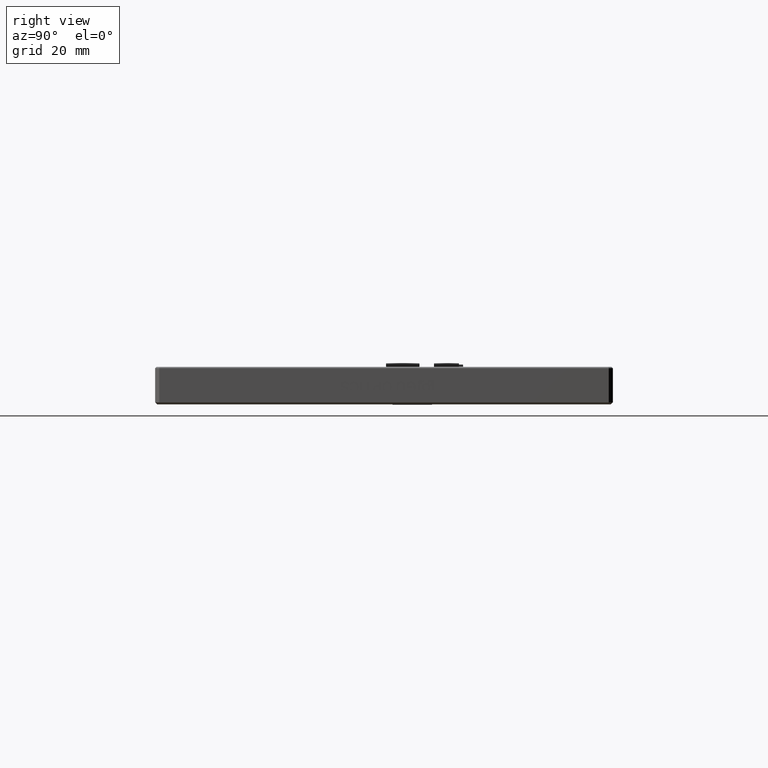
[diagram: clean part render]
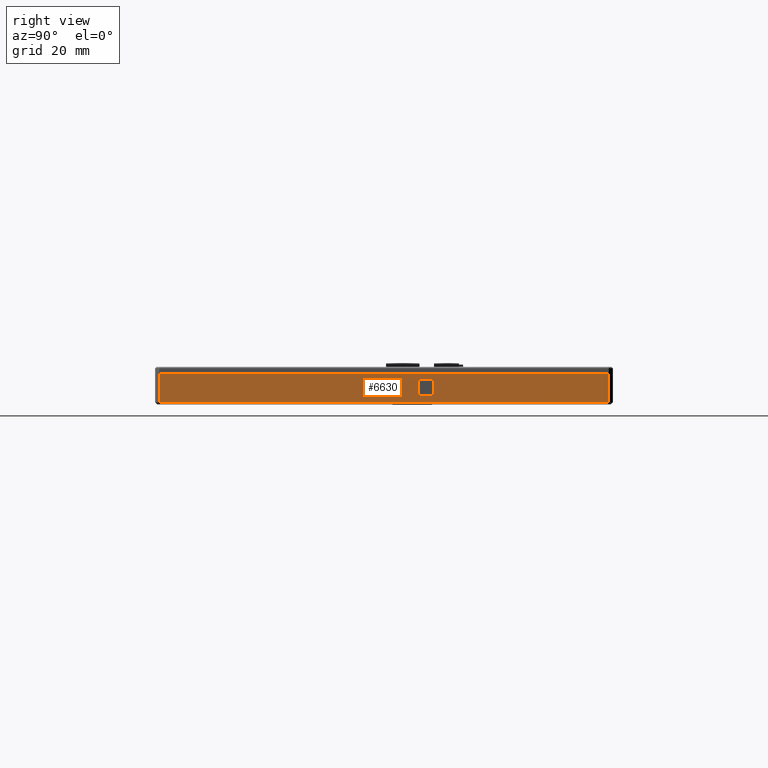
[diagram: same view with one face highlighted and labeled with its STEP entity id]
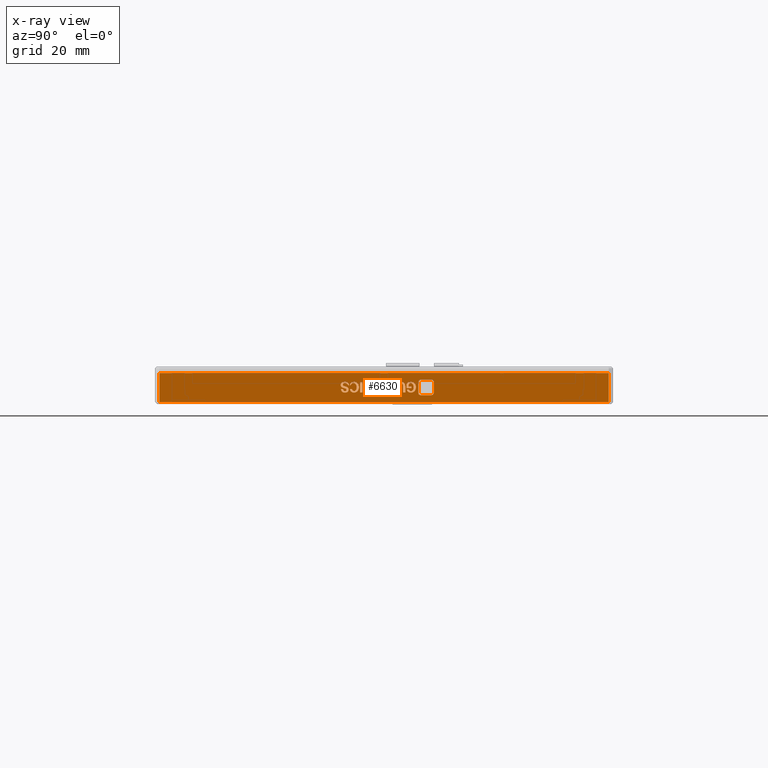
[diagram: x-ray of the same camera — body ghosted, the highlighted face saturated]
A machine part, right view. The second image highlights one B-rep face of the part: STEP entity #6630.
The next image is the same camera in x-ray: the body ghosted, the highlighted face saturated — about 0% of this face is hidden behind the body in this view.
In plain terms, the highlighted planar face has unit normal (-1, 0, 0).
Its self-contained STEP definition (entity closure, byte-faithful):
#24 = LINE ( 'NONE', #15022, #3669 ) ;
#37 = VERTEX_POINT ( 'NONE', #10821 ) ;
#41 = ORIENTED_EDGE ( 'NONE', *, *, #15469, .F. ) ;
#57 = B_SPLINE_CURVE_WITH_KNOTS ( 'NONE', 3,
 ( #817, #14532, #13183, #4960 ),
 .UNSPECIFIED., .F., .F.,
 ( 4, 4 ),
 ( 5.000000000000000000, 6.000000000000000000 ),
 .UNSPECIFIED. ) ;
#63 = EDGE_CURVE ( 'NONE', #2596, #14943, #2109, .T. ) ;
#87 = EDGE_CURVE ( 'NONE', #1684, #8119, #732, .T. ) ;
#91 = EDGE_CURVE ( 'NONE', #2199, #15218, #11681, .T. ) ;
#102 = CARTESIAN_POINT ( 'NONE',  ( 49.85490645284001200, -1.030087111525862100, -3.181631375790139300 ) ) ;
#106 = CARTESIAN_POINT ( 'NONE',  ( 49.85490645284001200, -0.9758010109310347700, -2.414189515325015900 ) ) ;
#110 = EDGE_CURVE ( 'NONE', #12854, #4637, #6576, .T. ) ;
#139 = CARTESIAN_POINT ( 'NONE',  ( 49.85490645284001200, -0.3645922494381389500, -3.297910445557578300 ) ) ;
#146 = CARTESIAN_POINT ( 'NONE',  ( 49.85490645284001200, -0.1080346507362842100, -3.983956957185494500 ) ) ;
#148 = LINE ( 'NONE', #5348, #7400 ) ;
#189 = VERTEX_POINT ( 'NONE', #348 ) ;
#232 = CARTESIAN_POINT ( 'NONE',  ( 49.85490645284184600, -45.59984726994868300, -2.369254987512433300E-011 ) ) ;
#235 = FACE_BOUND ( 'NONE', #8667, .T. ) ;
#258 = B_SPLINE_CURVE_WITH_KNOTS ( 'NONE', 3,
 ( #9606, #1414, #10996, #2786 ),
 .UNSPECIFIED., .F., .F.,
 ( 4, 4 ),
 ( 2.000000000000000000, 3.000000000000000000 ),
 .UNSPECIFIED. ) ;
#306 = CARTESIAN_POINT ( 'NONE',  ( 49.85490645284001200, 0.2608133752236528900, -2.983956957185482900 ) ) ;
#309 = VERTEX_POINT ( 'NONE', #12517 ) ;
#333 = DIRECTION ( 'NONE',  ( -0.0000000000000000000, 1.000000000000000000, -3.402284494385687700E-015 ) ) ;
#342 = CARTESIAN_POINT ( 'NONE',  ( 49.85490645284001200, -0.9758010109310347700, -2.414189515325015900 ) ) ;
#348 = CARTESIAN_POINT ( 'NONE',  ( 49.85490645284001200, 3.167992931740635700, -2.135119747883176700 ) ) ;
#389 = ORIENTED_EDGE ( 'NONE', *, *, #5835, .F. ) ;
#408 = CARTESIAN_POINT ( 'NONE',  ( 49.85490645284001200, 14.57605134169204000, -2.418009147558728000 ) ) ;
#424 = VERTEX_POINT ( 'NONE', #16985 ) ;
#429 = EDGE_LOOP ( 'NONE', ( #14435, #4320, #11831, #8738 ) ) ;
#449 = CARTESIAN_POINT ( 'NONE',  ( 49.85490645284001200, 20.38174465069552400, -4.482392731651038400 ) ) ;
#474 = LINE ( 'NONE', #15866, #10965 ) ;
#483 = ORIENTED_EDGE ( 'NONE', *, *, #6522, .F. ) ;
#503 = B_SPLINE_CURVE_WITH_KNOTS ( 'NONE', 3,
 ( #6298, #14582, #17401, #9040 ),
 .UNSPECIFIED., .F., .F.,
 ( 4, 4 ),
 ( 2.000000000000000000, 3.000000000000000000 ),
 .UNSPECIFIED. ) ;
#506 = B_SPLINE_CURVE_WITH_KNOTS ( 'NONE', 3,
 ( #13911, #2889, #139, #5653 ),
 .UNSPECIFIED., .F., .F.,
 ( 4, 4 ),
 ( 4.000000000000000000, 5.000000000000000000 ),
 .UNSPECIFIED. ) ;
#610 = DIRECTION ( 'NONE',  ( -0.0000000000000000000, -3.225647976951492600E-015, -1.000000000000000000 ) ) ;
#615 = CARTESIAN_POINT ( 'NONE',  ( 49.85490645284001200, 15.01351753963675000, -3.576980212999514300 ) ) ;
#625 = B_SPLINE_CURVE_WITH_KNOTS ( 'NONE', 3,
 ( #8452, #2980, #1660, #11253 ),
 .UNSPECIFIED., .F., .F.,
 ( 4, 4 ),
 ( 8.000000000000000000, 9.000000000000000000 ),
 .UNSPECIFIED. ) ;
#671 = CARTESIAN_POINT ( 'NONE',  ( 49.85490645284001200, 15.01351753963675300, -3.228143003697170300 ) ) ;
#675 = FACE_BOUND ( 'NONE', #7047, .T. ) ;
#732 = LINE ( 'NONE', #11857, #14961 ) ;
#738 = CARTESIAN_POINT ( 'NONE',  ( 49.85490645284001200, 11.39041045472620800, -4.635119747883208200 ) ) ;
#743 = B_SPLINE_CURVE_WITH_KNOTS ( 'NONE', 3,
 ( #11783, #6107, #6287, #16014 ),
 .UNSPECIFIED., .F., .F.,
 ( 4, 4 ),
 ( 0.0000000000000000000, 1.000000000000000000 ),
 .UNSPECIFIED. ) ;
#767 = VERTEX_POINT ( 'NONE', #6028 ) ;
#780 = VECTOR ( 'NONE', #4685, 1000.000000000000000 ) ;
#781 = ORIENTED_EDGE ( 'NONE', *, *, #8800, .F. ) ;
#817 = CARTESIAN_POINT ( 'NONE',  ( 49.85490645284001200, 5.782243878198194400, -3.821166259511087100 ) ) ;
#821 = VECTOR ( 'NONE', #7290, 1000.000000000000000 ) ;
#858 = B_SPLINE_CURVE_WITH_KNOTS ( 'NONE', 3,
 ( #12658, #1680, #7145, #16890 ),
 .UNSPECIFIED., .F., .F.,
 ( 4, 4 ),
 ( 10.00000000000000000, 11.00000000000000000 ),
 .UNSPECIFIED. ) ;
#868 = VERTEX_POINT ( 'NONE', #7675 ) ;
#896 = VECTOR ( 'NONE', #17614, 1000.000000000000000 ) ;
#900 = ORIENTED_EDGE ( 'NONE', *, *, #4580, .F. ) ;
#918 = VERTEX_POINT ( 'NONE', #16542 ) ;
#921 = EDGE_CURVE ( 'NONE', #5374, #5961, #5114, .T. ) ;
#1062 = CARTESIAN_POINT ( 'NONE',  ( 49.85490645284001200, 1.096062158349729200, -2.425817422301753000 ) ) ;
#1070 = VECTOR ( 'NONE', #10045, 1000.000000000000000 ) ;
#1177 = ORIENTED_EDGE ( 'NONE', *, *, #2843, .F. ) ;
#1190 = CARTESIAN_POINT ( 'NONE',  ( 49.85490645284001200, 11.91109731248707100, -3.065352306022745700 ) ) ;
#1193 = EDGE_CURVE ( 'NONE', #767, #3528, #15450, .T. ) ;
#1194 = CARTESIAN_POINT ( 'NONE',  ( 49.85490645284001200, -1.941255310552399100, -3.890933701371526200 ) ) ;
#1209 = CARTESIAN_POINT ( 'NONE',  ( 49.85490645284001200, 20.15067934904206800, -5.298086427859076700 ) ) ;
#1219 = EDGE_CURVE ( 'NONE', #10117, #2636, #8037, .T. ) ;
#1236 = VERTEX_POINT ( 'NONE', #7819 ) ;
#1237 = CARTESIAN_POINT ( 'NONE',  ( 49.85490645284001200, 13.51655972460185500, -2.433456686769107400 ) ) ;
#1277 = CARTESIAN_POINT ( 'NONE',  ( 49.85490645284001200, 15.51250347798215800, -3.968340407699333400 ) ) ;
#1292 = ORIENTED_EDGE ( 'NONE', *, *, #6519, .F. ) ;
#1293 = ORIENTED_EDGE ( 'NONE', *, *, #13332, .F. ) ;
#1299 = CARTESIAN_POINT ( 'NONE',  ( 49.85490645284001200, 9.860935062622310500, -2.135119747883197600 ) ) ;
#1347 = CARTESIAN_POINT ( 'NONE',  ( 49.85490645284001200, 7.962611644558463400, -3.367677887418058600 ) ) ;
#1384 = CARTESIAN_POINT ( 'NONE',  ( 49.85490645284001200, 0.7852184590528814600, -2.410200872815563900 ) ) ;
#1402 = CARTESIAN_POINT ( 'NONE',  ( 49.85490645284001200, -0.4225965761013410500, -4.662195194070269700 ) ) ;
#1414 = CARTESIAN_POINT ( 'NONE',  ( 49.85490645284001200, -1.467485705360541000, -2.542096492069198600 ) ) ;
#1427 = VERTEX_POINT ( 'NONE', #3929 ) ;
#1488 = EDGE_CURVE ( 'NONE', #8055, #8022, #15641, .T. ) ;
#1509 = CARTESIAN_POINT ( 'NONE',  ( 49.85490645284001200, 14.85079444607278600, -2.425817422301801400 ) ) ;
#1585 = VERTEX_POINT ( 'NONE', #7921 ) ;
#1594 = CARTESIAN_POINT ( 'NONE',  ( 49.85490645284001200, 16.02609190415832100, -2.553724399046001500 ) ) ;
#1643 = LINE ( 'NONE', #13954, #8903 ) ;
#1660 = CARTESIAN_POINT ( 'NONE',  ( 49.85490645284001200, 2.318276869004090000, -4.193259282766894600 ) ) ;
#1680 = CARTESIAN_POINT ( 'NONE',  ( 49.85490645284001200, 14.31929093065903300, -2.088608119976240300 ) ) ;
#1684 = VERTEX_POINT ( 'NONE', #6254 ) ;
#1692 = CARTESIAN_POINT ( 'NONE',  ( 49.85490645284001200, 12.79704917836055100, -2.425817422301794300 ) ) ;
#1704 = EDGE_CURVE ( 'NONE', #1585, #10596, #3485, .T. ) ;
#1718 = VERTEX_POINT ( 'NONE', #3867 ) ;
#1726 = EDGE_CURVE ( 'NONE', #12707, #4917, #5219, .T. ) ;
#1752 = CARTESIAN_POINT ( 'NONE',  ( 49.85490645284001200, 12.97417194742489200, -3.065352306022749200 ) ) ;
#1760 = B_SPLINE_CURVE_WITH_KNOTS ( 'NONE', 3,
 ( #3550, #13178, #4953, #14581 ),
 .UNSPECIFIED., .F., .F.,
 ( 4, 4 ),
 ( 6.000000000000000000, 7.000000000000000000 ),
 .UNSPECIFIED. ) ;
#1772 = DIRECTION ( 'NONE',  ( -0.0000000000000000000, -1.000000000000000000, -0.0000000000000000000 ) ) ;
#1838 = CARTESIAN_POINT ( 'NONE',  ( 49.85490645284001200, -1.051720426831493700, -2.088608119976187400 ) ) ;
#1880 = B_SPLINE_CURVE_WITH_KNOTS ( 'NONE', 3,
 ( #15415, #5726, #12580, #7072 ),
 .UNSPECIFIED., .F., .F.,
 ( 4, 4 ),
 ( 13.00000000000000000, 14.00000000000000000 ),
 .UNSPECIFIED. ) ;
#1884 = CARTESIAN_POINT ( 'NONE',  ( 49.85490645284001200, 10.28400158506680900, -3.367677887418065700 ) ) ;
#1885 = CARTESIAN_POINT ( 'NONE',  ( 49.85490645284001200, 19.70195575197474400, -5.298086427859073100 ) ) ;
#1920 = EDGE_CURVE ( 'NONE', #11559, #424, #7956, .T. ) ;
#1929 = CARTESIAN_POINT ( 'NONE',  ( 49.85490645284001200, -0.7624424387298669400, -3.670003468813382200 ) ) ;
#1995 = B_SPLINE_CURVE_WITH_KNOTS ( 'NONE', 3,
 ( #15035, #1237, #9417, #6719 ),
 .UNSPECIFIED., .F., .F.,
 ( 4, 4 ),
 ( 9.000000000000000000, 10.00000000000000000 ),
 .UNSPECIFIED. ) ;
#2028 = CARTESIAN_POINT ( 'NONE',  ( 49.85490645284001200, -2.006358068799955200, -2.832794166487819800 ) ) ;
#2049 = CARTESIAN_POINT ( 'NONE',  ( 49.85490645284001200, 16.05489125515884700, -3.390933701371587900 ) ) ;
#2084 = CARTESIAN_POINT ( 'NONE',  ( 49.85490645284001200, -1.688010313256444400, -3.491596221652761800 ) ) ;
#2109 = B_SPLINE_CURVE_WITH_KNOTS ( 'NONE', 3,
 ( #12291, #1594, #9782, #15097 ),
 .UNSPECIFIED., .F., .F.,
 ( 4, 4 ),
 ( 11.00000000000000000, 12.00000000000000000 ),
 .UNSPECIFIED. ) ;
#2151 = ORIENTED_EDGE ( 'NONE', *, *, #8104, .F. ) ;
#2160 = ORIENTED_EDGE ( 'NONE', *, *, #9217, .F. ) ;
#2199 = VERTEX_POINT ( 'NONE', #10688 ) ;
#2200 = CARTESIAN_POINT ( 'NONE',  ( 49.85490645284001200, 11.39041045472621500, -3.216515096720426600 ) ) ;
#2209 = DIRECTION ( 'NONE',  ( 0.0000000000000000000, -1.000000000000000000, 0.0000000000000000000 ) ) ;
#2216 = DIRECTION ( 'NONE',  ( -0.0000000000000000000, 1.000000000000000000, -3.331606031764959200E-015 ) ) ;
#2228 = DIRECTION ( 'NONE',  ( -0.0000000000000000000, 1.000000000000000000, -2.929152229180571400E-015 ) ) ;
#2255 = CARTESIAN_POINT ( 'NONE',  ( 49.85490645284001200, 7.637165457430362500, -4.635119747883194900 ) ) ;
#2268 = EDGE_CURVE ( 'NONE', #7346, #8957, #10486, .T. ) ;
#2347 = ORIENTED_EDGE ( 'NONE', *, *, #91, .F. ) ;
#2375 = EDGE_CURVE ( 'NONE', #13206, #10724, #506, .T. ) ;
#2430 = CARTESIAN_POINT ( 'NONE',  ( 49.85490645284001200, -2.006358068799955200, -2.832794166487819800 ) ) ;
#2450 = B_SPLINE_CURVE_WITH_KNOTS ( 'NONE', 3,
 ( #11355, #4521, #15588, #7231 ),
 .UNSPECIFIED., .F., .F.,
 ( 4, 4 ),
 ( 1.000000000000000000, 2.000000000000000000 ),
 .UNSPECIFIED. ) ;
#2530 = VECTOR ( 'NONE', #5429, 1000.000000000000000 ) ;
#2561 = CARTESIAN_POINT ( 'NONE',  ( 49.85490645284001200, -1.474786949276000400, -2.797910445557577400 ) ) ;
#2581 = DIRECTION ( 'NONE',  ( -0.0000000000000000000, 1.000000000000000000, -3.439221237990560300E-015 ) ) ;
#2596 = VERTEX_POINT ( 'NONE', #2049 ) ;
#2598 = CARTESIAN_POINT ( 'NONE',  ( 49.85490645284001200, -45.59984726994999700, -3.500000000023749400 ) ) ;
#2600 = EDGE_CURVE ( 'NONE', #13803, #8327, #8966, .T. ) ;
#2606 = EDGE_CURVE ( 'NONE', #918, #7346, #743, .T. ) ;
#2608 = CARTESIAN_POINT ( 'NONE',  ( 49.85490645284001200, 10.24790099015071300, -2.561363663513279500 ) ) ;
#2619 = CARTESIAN_POINT ( 'NONE',  ( 49.85490645284001200, 10.28400158506680900, -3.367677887418065700 ) ) ;
#2625 = EDGE_CURVE ( 'NONE', #9118, #4675, #7884, .T. ) ;
#2633 = ORIENTED_EDGE ( 'NONE', *, *, #12393, .F. ) ;
#2636 = VERTEX_POINT ( 'NONE', #13174 ) ;
#2694 = CARTESIAN_POINT ( 'NONE',  ( 49.85490645284001200, 2.658122731632618100, -4.635119747883177200 ) ) ;
#2709 = ORIENTED_EDGE ( 'NONE', *, *, #12496, .F. ) ;
#2716 = VECTOR ( 'NONE', #15226, 1000.000000000000000 ) ;
#2717 = CARTESIAN_POINT ( 'NONE',  ( 49.85490645284001200, 20.38174465069553100, -2.249422829173265600 ) ) ;
#2721 = ORIENTED_EDGE ( 'NONE', *, *, #7051, .F. ) ;
#2739 = ORIENTED_EDGE ( 'NONE', *, *, #110, .F. ) ;
#2786 = CARTESIAN_POINT ( 'NONE',  ( 49.85490645284001200, -0.9758010109310347700, -2.414189515325015900 ) ) ;
#2807 = B_SPLINE_CURVE_WITH_KNOTS ( 'NONE', 3,
 ( #2028, #10225, #2084, #11698 ),
 .UNSPECIFIED., .F., .F.,
 ( 4, 4 ),
 ( 11.00000000000000000, 12.00000000000000000 ),
 .UNSPECIFIED. ) ;
#2834 = CARTESIAN_POINT ( 'NONE',  ( 49.85490645284001200, 13.49485880518590600, -4.635119747883215300 ) ) ;
#2843 = EDGE_CURVE ( 'NONE', #4292, #1684, #15705, .T. ) ;
#2856 = CARTESIAN_POINT ( 'NONE',  ( 49.85490645284001200, -0.3212580147168332400, -2.615683566163304400 ) ) ;
#2875 = DIRECTION ( 'NONE',  ( -0.0000000000000000000, 4.661209649226093500E-015, 1.000000000000000000 ) ) ;
#2889 = CARTESIAN_POINT ( 'NONE',  ( 49.85490645284001200, -0.05733156798882338400, -3.565352306022704400 ) ) ;
#2923 = B_SPLINE_CURVE_WITH_KNOTS ( 'NONE', 3,
 ( #6750, #10797, #8143, #17879 ),
 .UNSPECIFIED., .F., .F.,
 ( 4, 4 ),
 ( 5.000000000000000000, 6.000000000000000000 ),
 .UNSPECIFIED. ) ;
#2978 = EDGE_CURVE ( 'NONE', #16672, #12299, #16996, .T. ) ;
#2980 = CARTESIAN_POINT ( 'NONE',  ( 49.85490645284001200, 1.945913429306989700, -4.623491840906432100 ) ) ;
#2995 = EDGE_LOOP ( 'NONE', ( #10684, #4623, #12139, #2721, #11988, #3239, #483 ) ) ;
#3028 = CARTESIAN_POINT ( 'NONE',  ( 49.85490645284001200, 0.2608133752236546100, -2.507212771138970500 ) ) ;
#3097 = CARTESIAN_POINT ( 'NONE',  ( 49.85490645284001200, 12.45348508966392700, -2.088608119976239400 ) ) ;
#3186 = CARTESIAN_POINT ( 'NONE',  ( 49.85490645284001200, -1.214443520395411600, -4.301730077791207300 ) ) ;
#3204 = VERTEX_POINT ( 'NONE', #14555 ) ;
#3214 = EDGE_CURVE ( 'NONE', #15934, #8055, #16568, .T. ) ;
#3239 = ORIENTED_EDGE ( 'NONE', *, *, #4322, .F. ) ;
#3320 = CARTESIAN_POINT ( 'NONE',  ( 49.85490645284001200, 20.38174465069553100, -2.249422829173265600 ) ) ;
#3344 = VECTOR ( 'NONE', #2875, 1000.000000000000000 ) ;
#3346 = CARTESIAN_POINT ( 'NONE',  ( 49.85490645284001200, 16.65331941125985800, -4.618331488160547900 ) ) ;
#3358 = LINE ( 'NONE', #10473, #17206 ) ;
#3390 = LINE ( 'NONE', #4288, #17676 ) ;
#3410 = VERTEX_POINT ( 'NONE', #4317 ) ;
#3484 = CARTESIAN_POINT ( 'NONE',  ( 49.85490645284001200, 15.28467762617041400, -2.464520775465703500 ) ) ;
#3485 = B_SPLINE_CURVE_WITH_KNOTS ( 'NONE', 3,
 ( #1062, #11944, #6900, #15231 ),
 .UNSPECIFIED., .F., .F.,
 ( 4, 4 ),
 ( 3.000000000000000000, 4.000000000000000000 ),
 .UNSPECIFIED. ) ;
#3516 = CARTESIAN_POINT ( 'NONE',  ( 49.85490645284001200, 12.45348508966392700, -2.088608119976239400 ) ) ;
#3528 = VERTEX_POINT ( 'NONE', #17001 ) ;
#3550 = CARTESIAN_POINT ( 'NONE',  ( 49.85490645284001200, 6.628376923087428100, -3.007212771138995300 ) ) ;
#3595 = CARTESIAN_POINT ( 'NONE',  ( 49.85490645284001200, 13.49485880518591300, -3.193259282766945700 ) ) ;
#3599 = CARTESIAN_POINT ( 'NONE',  ( 49.85490645284001200, 2.354377463920415400, -3.379305794394795700 ) ) ;
#3669 = VECTOR ( 'NONE', #2581, 1000.000000000000000 ) ;
#3744 = EDGE_LOOP ( 'NONE', ( #13808, #1177, #1293, #8410 ) ) ;
#3867 = CARTESIAN_POINT ( 'NONE',  ( 49.85490645284001200, 12.44266843201113600, -2.425817422301794300 ) ) ;
#3871 = EDGE_CURVE ( 'NONE', #6364, #12555, #1880, .T. ) ;
#3872 = EDGE_CURVE ( 'NONE', #4637, #11559, #625, .T. ) ;
#3882 = FACE_BOUND ( 'NONE', #16557, .T. ) ;
#3929 = CARTESIAN_POINT ( 'NONE',  ( 49.85490645284001200, 3.471738199453058300, -4.286282538580835000 ) ) ;
#4003 = CARTESIAN_POINT ( 'NONE',  ( 49.85490645284001200, 16.05489125515884700, -3.390933701371587900 ) ) ;
#4023 = CARTESIAN_POINT ( 'NONE',  ( 49.85490645284001200, 2.658122731632626600, -2.135119747883176700 ) ) ;
#4041 = ORIENTED_EDGE ( 'NONE', *, *, #9249, .F. ) ;
#4091 = CARTESIAN_POINT ( 'NONE',  ( 49.85490645284001200, 7.637165457430372200, -2.135119747883190500 ) ) ;
#4122 = ORIENTED_EDGE ( 'NONE', *, *, #10262, .F. ) ;
#4123 = ORIENTED_EDGE ( 'NONE', *, *, #7758, .F. ) ;
#4149 = ORIENTED_EDGE ( 'NONE', *, *, #3214, .F. ) ;
#4164 = CARTESIAN_POINT ( 'NONE',  ( 49.85490645284001200, 20.38174465069553100, -1.800760377921140700 ) ) ;
#4176 = CARTESIAN_POINT ( 'NONE',  ( 49.85490645284001200, 5.532717106970499900, -4.286282538580842100 ) ) ;
#4198 = VERTEX_POINT ( 'NONE', #14663 ) ;
#4241 = VECTOR ( 'NONE', #7059, 1000.000000000000000 ) ;
#4266 = CARTESIAN_POINT ( 'NONE',  ( 49.85490645284001200, 64.56015273004999200, -7.187088229858998600 ) ) ;
#4288 = CARTESIAN_POINT ( 'NONE',  ( 49.85490645284001200, 5.532717106970498100, -4.635119747883187800 ) ) ;
#4292 = VERTEX_POINT ( 'NONE', #4023 ) ;
#4313 = FACE_BOUND ( 'NONE', #7583, .T. ) ;
#4317 = CARTESIAN_POINT ( 'NONE',  ( 49.85490645284001200, 5.782243878198194400, -3.821166259511087100 ) ) ;
#4320 = ORIENTED_EDGE ( 'NONE', *, *, #13335, .F. ) ;
#4322 = EDGE_CURVE ( 'NONE', #17214, #10081, #5758, .T. ) ;
#4329 = CARTESIAN_POINT ( 'NONE',  ( 49.85490645284001200, 16.65331941125985800, -2.249422829173251900 ) ) ;
#4349 = EDGE_CURVE ( 'NONE', #14857, #13206, #6108, .T. ) ;
#4352 = CARTESIAN_POINT ( 'NONE',  ( 49.85490645284001200, 0.7888014769004119100, -2.088608119976194600 ) ) ;
#4417 = VECTOR ( 'NONE', #7448, 1000.000000000000000 ) ;
#4438 = CARTESIAN_POINT ( 'NONE',  ( 49.85490645284001200, 12.44266843201113600, -2.425817422301794300 ) ) ;
#4460 = CARTESIAN_POINT ( 'NONE',  ( 49.85490645284000500, 8.400152730050001200, -2.364686224609999500E-011 ) ) ;
#4521 = CARTESIAN_POINT ( 'NONE',  ( 49.85490645284001200, 14.63385285602418800, -4.321166259511121800 ) ) ;
#4568 = CARTESIAN_POINT ( 'NONE',  ( 49.85490645284001200, -0.9975019303469865300, -4.309538352534309200 ) ) ;
#4580 = EDGE_CURVE ( 'NONE', #424, #16672, #16127, .T. ) ;
#4586 = CARTESIAN_POINT ( 'NONE',  ( 49.85490645284001200, 6.628376923087421000, -4.635119747883191400 ) ) ;
#4623 = ORIENTED_EDGE ( 'NONE', *, *, #13461, .F. ) ;
#4637 = VERTEX_POINT ( 'NONE', #15589 ) ;
#4675 = VERTEX_POINT ( 'NONE', #1885 ) ;
#4685 = DIRECTION ( 'NONE',  ( -0.0000000000000000000, 4.812458675290528300E-015, 1.000000000000000000 ) ) ;
#4819 = VERTEX_POINT ( 'NONE', #17402 ) ;
#4878 = CARTESIAN_POINT ( 'NONE',  ( 49.85490645284001200, 14.85079444607278600, -2.425817422301801400 ) ) ;
#4917 = VERTEX_POINT ( 'NONE', #9213 ) ;
#4934 = DIRECTION ( 'NONE',  ( -0.0000000000000000000, -3.729655473350013000E-015, -1.000000000000000000 ) ) ;
#4953 = CARTESIAN_POINT ( 'NONE',  ( 49.85490645284001200, 5.767844202698152700, -3.263026724627353200 ) ) ;
#4960 = CARTESIAN_POINT ( 'NONE',  ( 49.85490645284001200, 6.628376923087421000, -4.635119747883191400 ) ) ;
#4969 = VERTEX_POINT ( 'NONE', #5275 ) ;
#4974 = VECTOR ( 'NONE', #9364, 1000.000000000000000 ) ;
#5110 = EDGE_CURVE ( 'NONE', #3528, #4969, #1643, .T. ) ;
#5112 = VERTEX_POINT ( 'NONE', #4329 ) ;
#5114 = B_SPLINE_CURVE_WITH_KNOTS ( 'NONE', 3,
 ( #15912, #10562, #14726, #2430 ),
 .UNSPECIFIED., .F., .F.,
 ( 4, 4 ),
 ( 12.00000000000000000, 13.00000000000000000 ),
 .UNSPECIFIED. ) ;
#5133 = CARTESIAN_POINT ( 'NONE',  ( 49.85490645284001200, -0.9866852726939761000, -4.670003468813383100 ) ) ;
#5147 = CARTESIAN_POINT ( 'NONE',  ( 49.85490645284001200, 5.532717106970498100, -4.635119747883187800 ) ) ;
#5159 = EDGE_CURVE ( 'NONE', #1718, #9785, #8855, .T. ) ;
#5219 = B_SPLINE_CURVE_WITH_KNOTS ( 'NONE', 3,
 ( #106, #8286, #2856, #12466 ),
 .UNSPECIFIED., .F., .F.,
 ( 4, 4 ),
 ( 1.000000000000000000, 2.000000000000000000 ),
 .UNSPECIFIED. ) ;
#5275 = CARTESIAN_POINT ( 'NONE',  ( 49.85490645284001200, 4.762571082092213400, -2.135119747883183800 ) ) ;
#5291 = VERTEX_POINT ( 'NONE', #10236 ) ;
#5316 = CARTESIAN_POINT ( 'NONE',  ( 49.85490645284001200, 12.07382040605103600, -2.410200872815602100 ) ) ;
#5318 = ORIENTED_EDGE ( 'NONE', *, *, #5159, .F. ) ;
#5331 = ORIENTED_EDGE ( 'NONE', *, *, #1704, .F. ) ;
#5340 = CARTESIAN_POINT ( 'NONE',  ( 49.85490645284001200, 20.38174465069552400, -4.482392731651038400 ) ) ;
#5346 = DIRECTION ( 'NONE',  ( -0.0000000000000000000, -1.000000000000000000, 6.952995436025848100E-015 ) ) ;
#5348 = CARTESIAN_POINT ( 'NONE',  ( 49.85490645284001200, 62.40015273005000300, -3.500000000023749400 ) ) ;
#5374 = VERTEX_POINT ( 'NONE', #11829 ) ;
#5400 = CARTESIAN_POINT ( 'NONE',  ( 49.85490645284001200, 14.89419628490461600, -4.321166259511121800 ) ) ;
#5421 = CARTESIAN_POINT ( 'NONE',  ( 49.85490645284001200, 8.013314727305813200, -4.189270640257443100 ) ) ;
#5429 = DIRECTION ( 'NONE',  ( -0.0000000000000000000, -1.000000000000000000, 4.504920936911144600E-015 ) ) ;
#5493 = EDGE_CURVE ( 'NONE', #15218, #1718, #16350, .T. ) ;
#5521 = CARTESIAN_POINT ( 'NONE',  ( 49.85490645284001200, -0.9975019303469865300, -4.309538352534309200 ) ) ;
#5522 = CARTESIAN_POINT ( 'NONE',  ( 49.85490645284001200, 0.2065272746288246400, -3.844422073464571500 ) ) ;
#5529 = VERTEX_POINT ( 'NONE', #2619 ) ;
#5530 = CARTESIAN_POINT ( 'NONE',  ( 49.85490645284001200, -0.1080346507362842100, -3.983956957185494500 ) ) ;
#5535 = CARTESIAN_POINT ( 'NONE',  ( 49.85490645284001200, 19.70195575197475400, -1.569661094235494000 ) ) ;
#5578 = LINE ( 'NONE', #6918, #8774 ) ;
#5630 = ORIENTED_EDGE ( 'NONE', *, *, #3871, .F. ) ;
#5638 = DIRECTION ( 'NONE',  ( 0.0000000000000000000, -1.000000000000000000, 0.0000000000000000000 ) ) ;
#5653 = CARTESIAN_POINT ( 'NONE',  ( 49.85490645284001200, -1.030087111525862100, -3.181631375790139300 ) ) ;
#5662 = DIRECTION ( 'NONE',  ( -0.0000000000000000000, 1.000000000000000000, -3.366795205228711200E-015 ) ) ;
#5690 = DIRECTION ( 'NONE',  ( -0.0000000000000000000, 3.225647976951492600E-015, 1.000000000000000000 ) ) ;
#5713 = CARTESIAN_POINT ( 'NONE',  ( 49.85490645284001200, 7.127362861432507300, -2.135119747883190500 ) ) ;
#5726 = CARTESIAN_POINT ( 'NONE',  ( 49.85490645284001200, 14.00114598744655000, -4.425817422301829400 ) ) ;
#5742 = DIRECTION ( 'NONE',  ( -0.0000000000000000000, -3.638688266683050800E-015, -1.000000000000000000 ) ) ;
#5758 = LINE ( 'NONE', #4091, #9383 ) ;
#5825 = LINE ( 'NONE', #615, #12733 ) ;
#5835 = EDGE_CURVE ( 'NONE', #16825, #14857, #14952, .T. ) ;
#5859 = CARTESIAN_POINT ( 'NONE',  ( 49.85490645284001200, 12.97417194742488500, -4.635119747883213600 ) ) ;
#5860 = CARTESIAN_POINT ( 'NONE',  ( 49.85490645284001200, 14.31929093065903100, -2.809538352534387300 ) ) ;
#5874 = B_SPLINE_CURVE_WITH_KNOTS ( 'NONE', 3,
 ( #11525, #1929, #15736, #7392 ),
 .UNSPECIFIED., .F., .F.,
 ( 4, 4 ),
 ( 10.00000000000000000, 11.00000000000000000 ),
 .UNSPECIFIED. ) ;
#5876 = CARTESIAN_POINT ( 'NONE',  ( 49.85490645284001200, 1.938612185391317900, -2.127480483415888000 ) ) ;
#5948 = CARTESIAN_POINT ( 'NONE',  ( 49.85490645284001200, 2.658122731632626600, -2.135119747883176700 ) ) ;
#5957 = EDGE_CURVE ( 'NONE', #9329, #8094, #1995, .T. ) ;
#5959 = EDGE_CURVE ( 'NONE', #5529, #918, #9205, .T. ) ;
#5961 = VERTEX_POINT ( 'NONE', #16448 ) ;
#5972 = VERTEX_POINT ( 'NONE', #10819 ) ;
#6006 = VECTOR ( 'NONE', #10844, 1000.000000000000000 ) ;
#6028 = CARTESIAN_POINT ( 'NONE',  ( 49.85490645284001200, 5.532717106970499900, -4.286282538580842100 ) ) ;
#6036 = ORIENTED_EDGE ( 'NONE', *, *, #1920, .F. ) ;
#6090 = CARTESIAN_POINT ( 'NONE',  ( 49.85490645284001200, 16.88445266530152000, -5.298086427859069600 ) ) ;
#6107 = CARTESIAN_POINT ( 'NONE',  ( 49.85490645284001200, 8.385678167003140600, -2.135119747883197600 ) ) ;
#6108 = B_SPLINE_CURVE_WITH_KNOTS ( 'NONE', 3,
 ( #9589, #1402, #13802, #5530 ),
 .UNSPECIFIED., .F., .F.,
 ( 4, 4 ),
 ( 5.000000000000000000, 6.000000000000000000 ),
 .UNSPECIFIED. ) ;
#6115 = ORIENTED_EDGE ( 'NONE', *, *, #8209, .F. ) ;
#6135 = VECTOR ( 'NONE', #13223, 1000.000000000000000 ) ;
#6138 = CARTESIAN_POINT ( 'NONE',  ( 49.85490645284001200, 0.2065272746288246400, -3.844422073464571500 ) ) ;
#6165 = EDGE_CURVE ( 'NONE', #15379, #5374, #14712, .T. ) ;
#6234 = CARTESIAN_POINT ( 'NONE',  ( 49.85490645284001200, 15.53420439739810300, -3.379305794394840600 ) ) ;
#6244 = CARTESIAN_POINT ( 'NONE',  ( 49.85490645284001200, 7.127362861432503700, -3.007212771138995300 ) ) ;
#6254 = CARTESIAN_POINT ( 'NONE',  ( 49.85490645284001200, 2.658122731632621200, -4.635119747883177200 ) ) ;
#6287 = CARTESIAN_POINT ( 'NONE',  ( 49.85490645284001200, 7.998915051805607100, -2.561363663513272800 ) ) ;
#6290 = ORIENTED_EDGE ( 'NONE', *, *, #6927, .F. ) ;
#6298 = CARTESIAN_POINT ( 'NONE',  ( 49.85490645284001200, 1.822873948506548600, -3.356049980441290400 ) ) ;
#6364 = VERTEX_POINT ( 'NONE', #7650 ) ;
#6460 = CARTESIAN_POINT ( 'NONE',  ( 49.85490645284001200, 7.637165457430372200, -2.135119747883190500 ) ) ;
#6514 = CARTESIAN_POINT ( 'NONE',  ( 49.85490645284001200, 1.215383413082025600, -2.088608119976194600 ) ) ;
#6519 = EDGE_CURVE ( 'NONE', #8238, #16825, #14233, .T. ) ;
#6522 = EDGE_CURVE ( 'NONE', #15982, #17214, #24, .T. ) ;
#6576 = B_SPLINE_CURVE_WITH_KNOTS ( 'NONE', 3,
 ( #5522, #7846, #12088, #7599 ),
 .UNSPECIFIED., .F., .F.,
 ( 4, 4 ),
 ( 9.000000000000000000, 10.00000000000000000 ),
 .UNSPECIFIED. ) ;
#6625 = CARTESIAN_POINT ( 'NONE',  ( 49.85490645284001200, -1.030087111525862100, -3.181631375790139300 ) ) ;
#6630 = ADVANCED_FACE ( 'NONE', ( #15342, #11622, #4313, #675, #14894, #11168, #7489, #3882, #235, #14443 ), #15256, .F. ) ;
#6686 = B_SPLINE_CURVE_WITH_KNOTS ( 'NONE', 3,
 ( #5860, #7203, #408, #9989 ),
 .UNSPECIFIED., .F., .F.,
 ( 4, 4 ),
 ( 4.000000000000000000, 5.000000000000000000 ),
 .UNSPECIFIED. ) ;
#6691 = EDGE_LOOP ( 'NONE', ( #16457, #13530, #11517, #4149 ) ) ;
#6698 = CARTESIAN_POINT ( 'NONE',  ( 49.85490645284001200, 14.31929093065903100, -3.228143003697166800 ) ) ;
#6719 = CARTESIAN_POINT ( 'NONE',  ( 49.85490645284001200, 12.45348508966392700, -2.088608119976239400 ) ) ;
#6750 = CARTESIAN_POINT ( 'NONE',  ( 49.85490645284001200, 17.33304715283090400, -1.569661094235487400 ) ) ;
#6759 = VECTOR ( 'NONE', #2209, 1000.000000000000000 ) ;
#6765 = CARTESIAN_POINT ( 'NONE',  ( 49.85490645284001200, 8.400213050724016000, -4.623491840906454300 ) ) ;
#6772 = VECTOR ( 'NONE', #610, 1000.000000000000000 ) ;
#6855 = VECTOR ( 'NONE', #5346, 1000.000000000000000 ) ;
#6886 = VERTEX_POINT ( 'NONE', #11768 ) ;
#6900 = CARTESIAN_POINT ( 'NONE',  ( 49.85490645284001200, 1.808406668896086300, -2.766846356860995600 ) ) ;
#6912 = B_SPLINE_CURVE_WITH_KNOTS ( 'NONE', 3,
 ( #8338, #9721, #15353, #7004 ),
 .UNSPECIFIED., .F., .F.,
 ( 4, 4 ),
 ( 1.000000000000000000, 2.000000000000000000 ),
 .UNSPECIFIED. ) ;
#6918 = CARTESIAN_POINT ( 'NONE',  ( 49.85490645284001200, 3.167992931740635700, -2.135119747883176700 ) ) ;
#6927 = EDGE_CURVE ( 'NONE', #4198, #11612, #7674, .T. ) ;
#6932 = EDGE_CURVE ( 'NONE', #16351, #6364, #14645, .T. ) ;
#6943 = ORIENTED_EDGE ( 'NONE', *, *, #11250, .F. ) ;
#6945 = LINE ( 'NONE', #8840, #17608 ) ;
#7003 = ORIENTED_EDGE ( 'NONE', *, *, #15773, .F. ) ;
#7004 = CARTESIAN_POINT ( 'NONE',  ( 49.85490645284001200, 0.7163974747369448200, -3.844422073464574700 ) ) ;
#7026 = B_SPLINE_CURVE_WITH_KNOTS ( 'NONE', 3,
 ( #4568, #3186, #17019, #8672 ),
 .UNSPECIFIED., .F., .F.,
 ( 4, 4 ),
 ( 8.000000000000000000, 9.000000000000000000 ),
 .UNSPECIFIED. ) ;
#7045 = ORIENTED_EDGE ( 'NONE', *, *, #5110, .F. ) ;
#7047 = EDGE_LOOP ( 'NONE', ( #4041, #17013, #9878, #8551, #13006, #10385, #2709, #13299 ) ) ;
#7051 = EDGE_CURVE ( 'NONE', #868, #7855, #15517, .T. ) ;
#7059 = DIRECTION ( 'NONE',  ( -0.0000000000000000000, -1.000000000000000000, -0.0000000000000000000 ) ) ;
#7063 = EDGE_CURVE ( 'NONE', #3410, #15982, #57, .T. ) ;
#7072 = CARTESIAN_POINT ( 'NONE',  ( 49.85490645284001200, 14.89419628490461600, -4.670003468813438200 ) ) ;
#7134 = CARTESIAN_POINT ( 'NONE',  ( 49.85490645284001200, -0.7515581769666577200, -4.309538352534309200 ) ) ;
#7145 = CARTESIAN_POINT ( 'NONE',  ( 49.85490645284001200, 13.97586205018319700, -2.274654631604155200 ) ) ;
#7203 = CARTESIAN_POINT ( 'NONE',  ( 49.85490645284001200, 14.39892857262758600, -2.545916124302910300 ) ) ;
#7222 = CARTESIAN_POINT ( 'NONE',  ( 49.85490645284001200, -0.6395381661500401100, -3.983956957185494500 ) ) ;
#7231 = CARTESIAN_POINT ( 'NONE',  ( 49.85490645284001200, 14.38432608479649800, -3.937445329278560300 ) ) ;
#7235 = CARTESIAN_POINT ( 'NONE',  ( 49.85490645284001200, -0.05374855014156701400, -2.553724399045945900 ) ) ;
#7290 = DIRECTION ( 'NONE',  ( -0.0000000000000000000, -1.000000000000000000, -0.0000000000000000000 ) ) ;
#7346 = VERTEX_POINT ( 'NONE', #10969 ) ;
#7365 = VERTEX_POINT ( 'NONE', #5521 ) ;
#7392 = CARTESIAN_POINT ( 'NONE',  ( 49.85490645284001200, -0.6395381661500401100, -3.983956957185494500 ) ) ;
#7400 = VECTOR ( 'NONE', #15024, 1000.000000000000000 ) ;
#7448 = DIRECTION ( 'NONE',  ( -0.0000000000000000000, -1.000000000000000000, -0.0000000000000000000 ) ) ;
#7489 = FACE_BOUND ( 'NONE', #429, .T. ) ;
#7524 = DIRECTION ( 'NONE',  ( -0.0000000000000000000, -1.000000000000000000, 2.929152229180571400E-015 ) ) ;
#7547 = VECTOR ( 'NONE', #16365, 1000.000000000000000 ) ;
#7553 = CARTESIAN_POINT ( 'NONE',  ( 49.85490645284001200, -1.442269372207434500, -3.890933701371529300 ) ) ;
#7583 = EDGE_LOOP ( 'NONE', ( #12068, #11820, #9166, #8199, #7003, #14758, #9972, #12400, #389, #1292, #12769, #17514, #17115, #41 ) ) ;
#7584 = B_SPLINE_CURVE_WITH_KNOTS ( 'NONE', 3,
 ( #10781, #17803, #12247, #4003 ),
 .UNSPECIFIED., .F., .F.,
 ( 4, 4 ),
 ( 12.00000000000000000, 13.00000000000000000 ),
 .UNSPECIFIED. ) ;
#7588 = EDGE_CURVE ( 'NONE', #5291, #309, #17433, .T. ) ;
#7599 = CARTESIAN_POINT ( 'NONE',  ( 49.85490645284001200, 1.237084332497962600, -4.670003468813390200 ) ) ;
#7623 = ORIENTED_EDGE ( 'NONE', *, *, #17887, .F. ) ;
#7628 = DIRECTION ( 'NONE',  ( -0.0000000000000000000, -1.000000000000000000, 6.397414524221001400E-015 ) ) ;
#7650 = CARTESIAN_POINT ( 'NONE',  ( 49.85490645284001200, 13.84200591173000900, -3.937445329278557200 ) ) ;
#7674 = LINE ( 'NONE', #14563, #11363 ) ;
#7675 = CARTESIAN_POINT ( 'NONE',  ( 49.85490645284001200, 7.127362861432507300, -2.135119747883190500 ) ) ;
#7686 = ORIENTED_EDGE ( 'NONE', *, *, #10417, .F. ) ;
#7700 = CARTESIAN_POINT ( 'NONE',  ( 49.85490645284001200, 0.2608133752236546100, -2.507212771138970500 ) ) ;
#7758 = EDGE_CURVE ( 'NONE', #11504, #2199, #3358, .T. ) ;
#7762 = EDGE_CURVE ( 'NONE', #3204, #12854, #13489, .T. ) ;
#7819 = CARTESIAN_POINT ( 'NONE',  ( 49.85490645284001200, 14.89419628490461600, -4.321166259511121800 ) ) ;
#7846 = CARTESIAN_POINT ( 'NONE',  ( 49.85490645284001200, 0.3223331156238986600, -4.386945058862060900 ) ) ;
#7855 = VERTEX_POINT ( 'NONE', #14808 ) ;
#7884 = LINE ( 'NONE', #14575, #8314 ) ;
#7921 = CARTESIAN_POINT ( 'NONE',  ( 49.85490645284001200, 1.096062158349729200, -2.425817422301753000 ) ) ;
#7933 = ORIENTED_EDGE ( 'NONE', *, *, #63, .F. ) ;
#7956 = B_SPLINE_CURVE_WITH_KNOTS ( 'NONE', 3,
 ( #3599, #9380, #5876, #6514 ),
 .UNSPECIFIED., .F., .F.,
 ( 4, 4 ),
 ( 7.000000000000000000, 8.000000000000000000 ),
 .UNSPECIFIED. ) ;
#7965 = ORIENTED_EDGE ( 'NONE', *, *, #5957, .F. ) ;
#8022 = VERTEX_POINT ( 'NONE', #232 ) ;
#8037 = LINE ( 'NONE', #671, #15012 ) ;
#8055 = VERTEX_POINT ( 'NONE', #8460 ) ;
#8094 = VERTEX_POINT ( 'NONE', #3097 ) ;
#8104 = EDGE_CURVE ( 'NONE', #12553, #11504, #11732, .T. ) ;
#8108 = CARTESIAN_POINT ( 'NONE',  ( 49.85490645284001200, 10.28400158506680900, -3.367677887418065700 ) ) ;
#8109 = VECTOR ( 'NONE', #15958, 1000.000000000000000 ) ;
#8119 = VERTEX_POINT ( 'NONE', #9982 ) ;
#8143 = CARTESIAN_POINT ( 'NONE',  ( 49.85490645284001200, 16.65331941125985800, -1.800760377921130300 ) ) ;
#8151 = LINE ( 'NONE', #9255, #896 ) ;
#8186 = CARTESIAN_POINT ( 'NONE',  ( 49.85490645284001200, -1.051720426831498800, -3.623491840906406300 ) ) ;
#8199 = ORIENTED_EDGE ( 'NONE', *, *, #1726, .F. ) ;
#8209 = EDGE_CURVE ( 'NONE', #11863, #6886, #9096, .T. ) ;
#8237 = VECTOR ( 'NONE', #15299, 1000.000000000000000 ) ;
#8238 = VERTEX_POINT ( 'NONE', #7553 ) ;
#8286 = CARTESIAN_POINT ( 'NONE',  ( 49.85490645284001200, -0.6287215084971338200, -2.421828779792301000 ) ) ;
#8309 = DIRECTION ( 'NONE',  ( -0.0000000000000000000, 3.469446951953611000E-015, 1.000000000000000000 ) ) ;
#8314 = VECTOR ( 'NONE', #2228, 1000.000000000000000 ) ;
#8327 = VERTEX_POINT ( 'NONE', #11933 ) ;
#8328 = LINE ( 'NONE', #15662, #1070 ) ;
#8338 = CARTESIAN_POINT ( 'NONE',  ( 49.85490645284001200, 1.204566755429395100, -4.309538352534316300 ) ) ;
#8410 = ORIENTED_EDGE ( 'NONE', *, *, #12163, .F. ) ;
#8452 = CARTESIAN_POINT ( 'NONE',  ( 49.85490645284001200, 1.237084332497962600, -4.670003468813390200 ) ) ;
#8460 = CARTESIAN_POINT ( 'NONE',  ( 49.85490645284016200, -45.59984726995016000, -7.000000000025467600 ) ) ;
#8533 = B_SPLINE_CURVE_WITH_KNOTS ( 'NONE', 3,
 ( #2717, #4164, #13807, #5535 ),
 .UNSPECIFIED., .F., .F.,
 ( 4, 4 ),
 ( 7.000000000000000000, 8.000000000000000000 ),
 .UNSPECIFIED. ) ;
#8551 = ORIENTED_EDGE ( 'NONE', *, *, #17858, .F. ) ;
#8647 = EDGE_CURVE ( 'NONE', #12801, #8022, #14518, .T. ) ;
#8667 = EDGE_LOOP ( 'NONE', ( #14030, #5630, #10069, #10656, #10558, #17713, #16310, #6115, #7623, #12628, #2160, #6290, #7686, #7933 ) ) ;
#8671 = EDGE_CURVE ( 'NONE', #1236, #16351, #2450, .T. ) ;
#8672 = CARTESIAN_POINT ( 'NONE',  ( 49.85490645284001200, -1.442269372207434500, -3.890933701371529300 ) ) ;
#8738 = ORIENTED_EDGE ( 'NONE', *, *, #2606, .F. ) ;
#8774 = VECTOR ( 'NONE', #8309, 1000.000000000000000 ) ;
#8790 = CARTESIAN_POINT ( 'NONE',  ( 49.85490645284001200, 4.241884224331462500, -4.286282538580838500 ) ) ;
#8800 = EDGE_CURVE ( 'NONE', #10596, #37, #503, .T. ) ;
#8840 = CARTESIAN_POINT ( 'NONE',  ( 49.85490645284001200, 6.628376923087428100, -3.007212771138995300 ) ) ;
#8855 = B_SPLINE_CURVE_WITH_KNOTS ( 'NONE', 3,
 ( #4438, #1692, #9937, #1752 ),
 .UNSPECIFIED., .F., .F.,
 ( 4, 4 ),
 ( 3.000000000000000000, 4.000000000000000000 ),
 .UNSPECIFIED. ) ;
#8891 = CARTESIAN_POINT ( 'NONE',  ( 49.85490645284001200, 3.471738199453057000, -4.635119747883180700 ) ) ;
#8903 = VECTOR ( 'NONE', #5690, 1000.000000000000000 ) ;
#8957 = VERTEX_POINT ( 'NONE', #14892 ) ;
#8966 = B_SPLINE_CURVE_WITH_KNOTS ( 'NONE', 3,
 ( #4878, #3484, #11727, #6234 ),
 .UNSPECIFIED., .F., .F.,
 ( 4, 4 ),
 ( 3.000000000000000000, 4.000000000000000000 ),
 .UNSPECIFIED. ) ;
#9010 = CARTESIAN_POINT ( 'NONE',  ( 49.85490645284001200, 8.400152730050004700, -7.000000000023993300 ) ) ;
#9040 = CARTESIAN_POINT ( 'NONE',  ( 49.85490645284001200, 1.204566755429395100, -4.309538352534316300 ) ) ;
#9048 = CARTESIAN_POINT ( 'NONE',  ( 49.85490645284001200, 17.33304715283090400, -1.569661094235487400 ) ) ;
#9063 = ORIENTED_EDGE ( 'NONE', *, *, #12467, .F. ) ;
#9096 = LINE ( 'NONE', #14360, #16104 ) ;
#9118 = VERTEX_POINT ( 'NONE', #14146 ) ;
#9166 = ORIENTED_EDGE ( 'NONE', *, *, #12773, .F. ) ;
#9173 = CARTESIAN_POINT ( 'NONE',  ( 49.85490645284001200, -0.9866852726939761000, -4.670003468813383100 ) ) ;
#9205 = B_SPLINE_CURVE_WITH_KNOTS ( 'NONE', 3,
 ( #8108, #2608, #1299, #10870 ),
 .UNSPECIFIED., .F., .F.,
 ( 4, 4 ),
 ( 1.000000000000000000, 2.000000000000000000 ),
 .UNSPECIFIED. ) ;
#9213 = CARTESIAN_POINT ( 'NONE',  ( 49.85490645284001200, -0.05374855014156701400, -2.995584864162240900 ) ) ;
#9217 = EDGE_CURVE ( 'NONE', #11612, #10117, #5825, .T. ) ;
#9249 = EDGE_CURVE ( 'NONE', #5972, #16126, #474, .T. ) ;
#9255 = CARTESIAN_POINT ( 'NONE',  ( 49.85490645284001200, 4.241884224331469600, -2.135119747883180300 ) ) ;
#9329 = VERTEX_POINT ( 'NONE', #3595 ) ;
#9364 = DIRECTION ( 'NONE',  ( -0.0000000000000000000, -4.393728232776347900E-015, -1.000000000000000000 ) ) ;
#9380 = CARTESIAN_POINT ( 'NONE',  ( 49.85490645284001200, 2.318276869004095400, -2.557544031279595400 ) ) ;
#9383 = VECTOR ( 'NONE', #12334, 1000.000000000000000 ) ;
#9417 = CARTESIAN_POINT ( 'NONE',  ( 49.85490645284001200, 13.16941261805753700, -2.065352306022748300 ) ) ;
#9436 = CARTESIAN_POINT ( 'NONE',  ( 49.85490645284001200, 14.89419628490461600, -4.670003468813438200 ) ) ;
#9439 = ORIENTED_EDGE ( 'NONE', *, *, #10714, .F. ) ;
#9464 = EDGE_CURVE ( 'NONE', #10724, #12171, #15869, .T. ) ;
#9502 = ORIENTED_EDGE ( 'NONE', *, *, #15808, .F. ) ;
#9567 = CARTESIAN_POINT ( 'NONE',  ( 49.85490645284001200, 0.5067571286038151700, -2.596247384443480100 ) ) ;
#9576 = VECTOR ( 'NONE', #5742, 1000.000000000000000 ) ;
#9589 = CARTESIAN_POINT ( 'NONE',  ( 49.85490645284001200, -0.9866852726939761000, -4.670003468813383100 ) ) ;
#9606 = CARTESIAN_POINT ( 'NONE',  ( 49.85490645284001200, -1.474786949276000400, -2.797910445557577400 ) ) ;
#9709 = EDGE_LOOP ( 'NONE', ( #14253, #2739, #11291, #9502, #781, #5331, #4122, #17350, #900, #6036 ) ) ;
#9721 = CARTESIAN_POINT ( 'NONE',  ( 49.85490645284001200, 0.9514569663540608500, -4.309538352534316300 ) ) ;
#9782 = CARTESIAN_POINT ( 'NONE',  ( 49.85490645284001200, 15.62824171486681900, -2.119672208672831900 ) ) ;
#9785 = VERTEX_POINT ( 'NONE', #14034 ) ;
#9818 = LINE ( 'NONE', #13696, #2530 ) ;
#9878 = ORIENTED_EDGE ( 'NONE', *, *, #13799, .F. ) ;
#9937 = CARTESIAN_POINT ( 'NONE',  ( 49.85490645284001200, 12.97417194742489200, -2.638939380116854600 ) ) ;
#9939 = CARTESIAN_POINT ( 'NONE',  ( 49.85490645284001200, 3.471738199453060100, -4.635119747883180700 ) ) ;
#9972 = ORIENTED_EDGE ( 'NONE', *, *, #2375, .F. ) ;
#9982 = CARTESIAN_POINT ( 'NONE',  ( 49.85490645284001200, 3.167992931740627200, -4.635119747883178900 ) ) ;
#9989 = CARTESIAN_POINT ( 'NONE',  ( 49.85490645284001200, 14.85079444607278600, -2.425817422301801400 ) ) ;
#9990 = LINE ( 'NONE', #2834, #16980 ) ;
#10026 = CARTESIAN_POINT ( 'NONE',  ( 49.85490645284001200, -0.6322369222343544600, -2.065352306022699500 ) ) ;
#10045 = DIRECTION ( 'NONE',  ( -0.0000000000000000000, -0.0000000000000000000, 1.000000000000000000 ) ) ;
#10055 = DIRECTION ( 'NONE',  ( -0.0000000000000000000, -4.420332412859421300E-015, -1.000000000000000000 ) ) ;
#10069 = ORIENTED_EDGE ( 'NONE', *, *, #6932, .F. ) ;
#10081 = VERTEX_POINT ( 'NONE', #6460 ) ;
#10086 = CARTESIAN_POINT ( 'NONE',  ( 49.85490645284001200, 10.24790099015070900, -4.204887189743666400 ) ) ;
#10091 = LINE ( 'NONE', #6698, #6006 ) ;
#10117 = VERTEX_POINT ( 'NONE', #12007 ) ;
#10144 = ORIENTED_EDGE ( 'NONE', *, *, #15831, .F. ) ;
#10201 = LINE ( 'NONE', #11086, #3344 ) ;
#10225 = CARTESIAN_POINT ( 'NONE',  ( 49.85490645284001200, -2.006358068799956900, -3.228143003697111300 ) ) ;
#10236 = CARTESIAN_POINT ( 'NONE',  ( 49.85490645284001200, 4.241884224331469600, -2.135119747883180300 ) ) ;
#10262 = EDGE_CURVE ( 'NONE', #12299, #1585, #16245, .T. ) ;
#10385 = ORIENTED_EDGE ( 'NONE', *, *, #13996, .F. ) ;
#10398 = CARTESIAN_POINT ( 'NONE',  ( 49.85490645284001200, 11.35430985980989000, -2.425817422301787700 ) ) ;
#10417 = EDGE_CURVE ( 'NONE', #14943, #4198, #858, .T. ) ;
#10427 = CARTESIAN_POINT ( 'NONE',  ( 49.85490645284001200, 2.354377463920415400, -3.379305794394795700 ) ) ;
#10439 = VERTEX_POINT ( 'NONE', #11381 ) ;
#10473 = CARTESIAN_POINT ( 'NONE',  ( 49.85490645284001200, 11.91109731248706400, -4.635119747883210000 ) ) ;
#10486 = B_SPLINE_CURVE_WITH_KNOTS ( 'NONE', 3,
 ( #1347, #5421, #6765, #10917 ),
 .UNSPECIFIED., .F., .F.,
 ( 4, 4 ),
 ( 3.000000000000000000, 4.000000000000000000 ),
 .UNSPECIFIED. ) ;
#10520 = CARTESIAN_POINT ( 'NONE',  ( 49.85490645284001200, -1.854451632888840300, -4.394753333605169000 ) ) ;
#10558 = ORIENTED_EDGE ( 'NONE', *, *, #13692, .F. ) ;
#10562 = CARTESIAN_POINT ( 'NONE',  ( 49.85490645284001200, -1.695311557172286300, -2.088608119976183900 ) ) ;
#10596 = VERTEX_POINT ( 'NONE', #14611 ) ;
#10656 = ORIENTED_EDGE ( 'NONE', *, *, #8671, .F. ) ;
#10684 = ORIENTED_EDGE ( 'NONE', *, *, #7063, .F. ) ;
#10688 = CARTESIAN_POINT ( 'NONE',  ( 49.85490645284001200, 11.91109731248706400, -4.635119747883210000 ) ) ;
#10714 = EDGE_CURVE ( 'NONE', #14196, #767, #17428, .T. ) ;
#10724 = VERTEX_POINT ( 'NONE', #102 ) ;
#10739 = CARTESIAN_POINT ( 'NONE',  ( 49.85490645284001200, -1.941255310552399100, -3.890933701371526200 ) ) ;
#10781 = CARTESIAN_POINT ( 'NONE',  ( 49.85490645284001200, 14.89419628490461600, -4.670003468813438200 ) ) ;
#10783 = CARTESIAN_POINT ( 'NONE',  ( 49.85490645284001200, -1.474786949276001300, -2.999404496395852200 ) ) ;
#10794 = AXIS2_PLACEMENT_3D ( 'NONE', #4266, #13896, #5638 ) ;
#10795 = CARTESIAN_POINT ( 'NONE',  ( 49.85490645284001200, 19.70195575197474400, -5.298086427859073100 ) ) ;
#10797 = CARTESIAN_POINT ( 'NONE',  ( 49.85490645284001200, 16.88445266530153100, -1.569661094235487400 ) ) ;
#10803 = VECTOR ( 'NONE', #1772, 1000.000000000000000 ) ;
#10819 = CARTESIAN_POINT ( 'NONE',  ( 49.85490645284001200, 19.70195575197475400, -1.569661094235494000 ) ) ;
#10821 = CARTESIAN_POINT ( 'NONE',  ( 49.85490645284001200, 1.204566755429395100, -4.309538352534316300 ) ) ;
#10844 = DIRECTION ( 'NONE',  ( -0.0000000000000000000, -1.000000000000000000, 4.997571264320339800E-015 ) ) ;
#10845 = CARTESIAN_POINT ( 'NONE',  ( 49.85490645284001200, 15.53420439739810300, -3.379305794394840600 ) ) ;
#10870 = CARTESIAN_POINT ( 'NONE',  ( 49.85490645284001200, 9.123306614812698000, -2.088608119976222100 ) ) ;
#10914 = VECTOR ( 'NONE', #7628, 1000.000000000000000 ) ;
#10917 = CARTESIAN_POINT ( 'NONE',  ( 49.85490645284001200, 9.123306614812687300, -4.670003468813417800 ) ) ;
#10951 = CARTESIAN_POINT ( 'NONE',  ( 49.85490645284001200, 1.096062158349729200, -2.425817422301753000 ) ) ;
#10965 = VECTOR ( 'NONE', #7524, 1000.000000000000000 ) ;
#10969 = CARTESIAN_POINT ( 'NONE',  ( 49.85490645284001200, 7.962611644558463400, -3.367677887418058600 ) ) ;
#10996 = CARTESIAN_POINT ( 'NONE',  ( 49.85490645284001200, -1.301247198059188200, -2.414189515325015900 ) ) ;
#11075 = CARTESIAN_POINT ( 'NONE',  ( 49.85490645284001200, 11.91109731248707100, -3.065352306022745700 ) ) ;
#11081 = CARTESIAN_POINT ( 'NONE',  ( 49.85490645284001200, -1.474786949276000400, -2.797910445557577400 ) ) ;
#11086 = CARTESIAN_POINT ( 'NONE',  ( 49.85490645284001200, 20.38174465069553100, -2.249422829173265600 ) ) ;
#11168 = FACE_BOUND ( 'NONE', #2995, .T. ) ;
#11179 = CARTESIAN_POINT ( 'NONE',  ( 49.85490645284001200, 11.91109731248707100, -3.065352306022745700 ) ) ;
#11243 = CARTESIAN_POINT ( 'NONE',  ( 49.85490645284001200, 0.4706565336878281700, -2.228143003697121000 ) ) ;
#11250 = EDGE_CURVE ( 'NONE', #13752, #10439, #9990, .T. ) ;
#11253 = CARTESIAN_POINT ( 'NONE',  ( 49.85490645284001200, 2.354377463920415400, -3.379305794394795700 ) ) ;
#11280 = VECTOR ( 'NONE', #15548, 1000.000000000000000 ) ;
#11282 = LINE ( 'NONE', #12925, #780 ) ;
#11291 = ORIENTED_EDGE ( 'NONE', *, *, #7762, .F. ) ;
#11295 = CARTESIAN_POINT ( 'NONE',  ( 49.85490645284001200, 9.860935062622301600, -4.638939380116844400 ) ) ;
#11311 = CARTESIAN_POINT ( 'NONE',  ( 49.85490645284001200, 11.39041045472620800, -4.635119747883208200 ) ) ;
#11319 = B_SPLINE_CURVE_WITH_KNOTS ( 'NONE', 3,
 ( #14061, #15477, #7134, #16880 ),
 .UNSPECIFIED., .F., .F.,
 ( 4, 4 ),
 ( 9.000000000000000000, 10.00000000000000000 ),
 .UNSPECIFIED. ) ;
#11355 = CARTESIAN_POINT ( 'NONE',  ( 49.85490645284001200, 14.89419628490461600, -4.321166259511121800 ) ) ;
#11363 = VECTOR ( 'NONE', #4934, 1000.000000000000000 ) ;
#11381 = CARTESIAN_POINT ( 'NONE',  ( 49.85490645284001200, 13.49485880518590600, -4.635119747883215300 ) ) ;
#11385 = LINE ( 'NONE', #14931, #4974 ) ;
#11392 = VERTEX_POINT ( 'NONE', #7222 ) ;
#11503 = CARTESIAN_POINT ( 'NONE',  ( 49.85490645284001200, -0.05374855014156701400, -2.553724399045945900 ) ) ;
#11504 = VERTEX_POINT ( 'NONE', #738 ) ;
#11517 = ORIENTED_EDGE ( 'NONE', *, *, #1488, .F. ) ;
#11525 = CARTESIAN_POINT ( 'NONE',  ( 49.85490645284001200, -1.051720426831498800, -3.623491840906406300 ) ) ;
#11555 = VECTOR ( 'NONE', #13730, 1000.000000000000000 ) ;
#11559 = VERTEX_POINT ( 'NONE', #10427 ) ;
#11567 = DIRECTION ( 'NONE',  ( -0.0000000000000000000, -0.0000000000000000000, 1.000000000000000000 ) ) ;
#11586 = CARTESIAN_POINT ( 'NONE',  ( 49.85490645284001200, 16.65331941125985100, -5.067089072758675700 ) ) ;
#11596 = DIRECTION ( 'NONE',  ( -0.0000000000000000000, 1.000000000000000000, -5.868503066130220000E-015 ) ) ;
#11612 = VERTEX_POINT ( 'NONE', #14767 ) ;
#11622 = FACE_BOUND ( 'NONE', #9709, .T. ) ;
#11681 = LINE ( 'NONE', #11179, #7547 ) ;
#11698 = CARTESIAN_POINT ( 'NONE',  ( 49.85490645284001200, -1.051720426831498800, -3.623491840906406300 ) ) ;
#11727 = CARTESIAN_POINT ( 'NONE',  ( 49.85490645284001200, 15.51250347798216100, -2.782293896071416800 ) ) ;
#11732 = LINE ( 'NONE', #11311, #11280 ) ;
#11747 = CARTESIAN_POINT ( 'NONE',  ( 49.85490645284001200, 11.70875821026961800, -2.049904766812368900 ) ) ;
#11768 = CARTESIAN_POINT ( 'NONE',  ( 49.85490645284001200, 14.31929093065903100, -2.809538352534387300 ) ) ;
#11783 = CARTESIAN_POINT ( 'NONE',  ( 49.85490645284001200, 9.123306614812698000, -2.088608119976222100 ) ) ;
#11820 = ORIENTED_EDGE ( 'NONE', *, *, #6165, .F. ) ;
#11829 = CARTESIAN_POINT ( 'NONE',  ( 49.85490645284001200, -1.051720426831493700, -2.088608119976187400 ) ) ;
#11831 = ORIENTED_EDGE ( 'NONE', *, *, #2268, .F. ) ;
#11857 = CARTESIAN_POINT ( 'NONE',  ( 49.85490645284001200, 3.167992931740627200, -4.635119747883178900 ) ) ;
#11863 = VERTEX_POINT ( 'NONE', #16772 ) ;
#11928 = EDGE_CURVE ( 'NONE', #6886, #13803, #6686, .T. ) ;
#11933 = CARTESIAN_POINT ( 'NONE',  ( 49.85490645284001200, 15.53420439739810300, -3.379305794394840600 ) ) ;
#11944 = CARTESIAN_POINT ( 'NONE',  ( 49.85490645284001200, 1.566248745694219100, -2.456712500722525700 ) ) ;
#11985 = LINE ( 'NONE', #5713, #4241 ) ;
#11988 = ORIENTED_EDGE ( 'NONE', *, *, #13234, .F. ) ;
#12007 = CARTESIAN_POINT ( 'NONE',  ( 49.85490645284001200, 15.01351753963675000, -3.576980212999514300 ) ) ;
#12068 = ORIENTED_EDGE ( 'NONE', *, *, #921, .F. ) ;
#12088 = CARTESIAN_POINT ( 'NONE',  ( 49.85490645284001200, 0.6658972043204654000, -4.662195194070273300 ) ) ;
#12139 = ORIENTED_EDGE ( 'NONE', *, *, #14033, .F. ) ;
#12163 = EDGE_CURVE ( 'NONE', #8119, #189, #5578, .T. ) ;
#12171 = VERTEX_POINT ( 'NONE', #11081 ) ;
#12179 = CARTESIAN_POINT ( 'NONE',  ( 49.85490645284001200, 11.89669763698680400, -2.623491840906450700 ) ) ;
#12247 = CARTESIAN_POINT ( 'NONE',  ( 49.85490645284001200, 16.02609190415831700, -4.204887189743684100 ) ) ;
#12291 = CARTESIAN_POINT ( 'NONE',  ( 49.85490645284001200, 16.05489125515884700, -3.390933701371587900 ) ) ;
#12299 = VERTEX_POINT ( 'NONE', #17008 ) ;
#12334 = DIRECTION ( 'NONE',  ( -0.0000000000000000000, 4.163336342344330700E-015, 1.000000000000000000 ) ) ;
#12374 = CARTESIAN_POINT ( 'NONE',  ( 49.85490645284001200, 12.97417194742488500, -4.635119747883213600 ) ) ;
#12393 = EDGE_CURVE ( 'NONE', #1427, #14876, #14450, .T. ) ;
#12400 = ORIENTED_EDGE ( 'NONE', *, *, #4349, .F. ) ;
#12466 = CARTESIAN_POINT ( 'NONE',  ( 49.85490645284001200, -0.05374855014156701400, -2.995584864162240900 ) ) ;
#12467 = EDGE_CURVE ( 'NONE', #4969, #5291, #8151, .T. ) ;
#12468 = ORIENTED_EDGE ( 'NONE', *, *, #13103, .F. ) ;
#12496 = EDGE_CURVE ( 'NONE', #5112, #16839, #11385, .T. ) ;
#12517 = CARTESIAN_POINT ( 'NONE',  ( 49.85490645284001200, 4.241884224331462500, -4.286282538580838500 ) ) ;
#12553 = VERTEX_POINT ( 'NONE', #13713 ) ;
#12555 = VERTEX_POINT ( 'NONE', #9436 ) ;
#12559 = VERTEX_POINT ( 'NONE', #8186 ) ;
#12580 = CARTESIAN_POINT ( 'NONE',  ( 49.85490645284001200, 14.35180850772792600, -4.670003468813438200 ) ) ;
#12628 = ORIENTED_EDGE ( 'NONE', *, *, #1219, .F. ) ;
#12658 = CARTESIAN_POINT ( 'NONE',  ( 49.85490645284001200, 14.86161110372563400, -2.088608119976241600 ) ) ;
#12707 = VERTEX_POINT ( 'NONE', #342 ) ;
#12733 = VECTOR ( 'NONE', #11596, 1000.000000000000000 ) ;
#12769 = ORIENTED_EDGE ( 'NONE', *, *, #16516, .F. ) ;
#12773 = EDGE_CURVE ( 'NONE', #4917, #15379, #8328, .T. ) ;
#12801 = VERTEX_POINT ( 'NONE', #15713 ) ;
#12854 = VERTEX_POINT ( 'NONE', #6138 ) ;
#12925 = CARTESIAN_POINT ( 'NONE',  ( 49.85490645284001200, 13.49485880518591300, -3.193259282766945700 ) ) ;
#13006 = ORIENTED_EDGE ( 'NONE', *, *, #2625, .F. ) ;
#13103 = EDGE_CURVE ( 'NONE', #309, #1427, #9818, .T. ) ;
#13158 = CARTESIAN_POINT ( 'NONE',  ( 49.85490645284001200, 13.84200591173000900, -3.937445329278557200 ) ) ;
#13174 = CARTESIAN_POINT ( 'NONE',  ( 49.85490645284001200, 15.01351753963675300, -3.228143003697170300 ) ) ;
#13178 = CARTESIAN_POINT ( 'NONE',  ( 49.85490645284001200, 6.049888550994416500, -2.991596221652802700 ) ) ;
#13183 = CARTESIAN_POINT ( 'NONE',  ( 49.85490645284001200, 6.057122190799891100, -4.635119747883189600 ) ) ;
#13206 = VERTEX_POINT ( 'NONE', #146 ) ;
#13223 = DIRECTION ( 'NONE',  ( -0.0000000000000000000, -1.000000000000000000, 6.804568988769893900E-015 ) ) ;
#13234 = EDGE_CURVE ( 'NONE', #10081, #868, #11985, .T. ) ;
#13280 = CARTESIAN_POINT ( 'NONE',  ( 49.85490645284001200, 0.2065272746288246400, -3.844422073464571500 ) ) ;
#13299 = ORIENTED_EDGE ( 'NONE', *, *, #13695, .F. ) ;
#13332 = EDGE_CURVE ( 'NONE', #189, #4292, #15483, .T. ) ;
#13335 = EDGE_CURVE ( 'NONE', #8957, #5529, #16007, .T. ) ;
#13461 = EDGE_CURVE ( 'NONE', #4819, #3410, #1760, .T. ) ;
#13489 = LINE ( 'NONE', #13280, #6135 ) ;
#13530 = ORIENTED_EDGE ( 'NONE', *, *, #8647, .T. ) ;
#13607 = CARTESIAN_POINT ( 'NONE',  ( 49.85490645284001200, 20.38174465069552700, -4.931021206707927500 ) ) ;
#13669 = CARTESIAN_POINT ( 'NONE',  ( 49.85490645284001200, 15.29928011400138000, -4.282293896071431400 ) ) ;
#13692 = EDGE_CURVE ( 'NONE', #8327, #1236, #16476, .T. ) ;
#13695 = EDGE_CURVE ( 'NONE', #16126, #5112, #2923, .T. ) ;
#13696 = CARTESIAN_POINT ( 'NONE',  ( 49.85490645284001200, 3.471738199453058300, -4.286282538580835000 ) ) ;
#13713 = CARTESIAN_POINT ( 'NONE',  ( 49.85490645284001200, 11.39041045472621500, -3.216515096720426600 ) ) ;
#13730 = DIRECTION ( 'NONE',  ( -0.0000000000000000000, -3.469446951953613800E-015, -1.000000000000000000 ) ) ;
#13752 = VERTEX_POINT ( 'NONE', #12374 ) ;
#13757 = VECTOR ( 'NONE', #10055, 1000.000000000000000 ) ;
#13799 = EDGE_CURVE ( 'NONE', #15947, #16022, #10201, .T. ) ;
#13802 = CARTESIAN_POINT ( 'NONE',  ( 49.85490645284001200, -0.1297355701521760700, -4.433456686769034100 ) ) ;
#13803 = VERTEX_POINT ( 'NONE', #1509 ) ;
#13807 = CARTESIAN_POINT ( 'NONE',  ( 49.85490645284001200, 20.15067934904207900, -1.569661094235494500 ) ) ;
#13808 = ORIENTED_EDGE ( 'NONE', *, *, #87, .F. ) ;
#13896 = DIRECTION ( 'NONE',  ( -1.000000000000000000, 0.0000000000000000000, 0.0000000000000000000 ) ) ;
#13911 = CARTESIAN_POINT ( 'NONE',  ( 49.85490645284001200, -0.1080346507362842100, -3.983956957185494500 ) ) ;
#13943 = ORIENTED_EDGE ( 'NONE', *, *, #5493, .F. ) ;
#13954 = CARTESIAN_POINT ( 'NONE',  ( 49.85490645284001200, 4.762571082092213400, -2.135119747883183800 ) ) ;
#13980 = CARTESIAN_POINT ( 'NONE',  ( 49.85490645284001200, 1.215383413082025600, -2.088608119976194600 ) ) ;
#13996 = EDGE_CURVE ( 'NONE', #16839, #9118, #14704, .T. ) ;
#14030 = ORIENTED_EDGE ( 'NONE', *, *, #16848, .F. ) ;
#14033 = EDGE_CURVE ( 'NONE', #7855, #4819, #6945, .T. ) ;
#14034 = CARTESIAN_POINT ( 'NONE',  ( 49.85490645284001200, 12.97417194742489200, -3.065352306022749200 ) ) ;
#14061 = CARTESIAN_POINT ( 'NONE',  ( 49.85490645284001200, -0.6395381661500401100, -3.983956957185494500 ) ) ;
#14146 = CARTESIAN_POINT ( 'NONE',  ( 49.85490645284001200, 17.33304715283089000, -5.298086427859069600 ) ) ;
#14196 = VERTEX_POINT ( 'NONE', #5147 ) ;
#14200 = CARTESIAN_POINT ( 'NONE',  ( 49.85490645284001200, 14.86161110372563400, -2.088608119976241600 ) ) ;
#14233 = LINE ( 'NONE', #10739, #6855 ) ;
#14253 = ORIENTED_EDGE ( 'NONE', *, *, #3872, .F. ) ;
#14360 = CARTESIAN_POINT ( 'NONE',  ( 49.85490645284001200, 14.31929093065903100, -2.809538352534387300 ) ) ;
#14435 = ORIENTED_EDGE ( 'NONE', *, *, #5959, .F. ) ;
#14443 = FACE_OUTER_BOUND ( 'NONE', #6691, .T. ) ;
#14450 = LINE ( 'NONE', #8891, #17306 ) ;
#14505 = EDGE_CURVE ( 'NONE', #11392, #7365, #11319, .T. ) ;
#14518 = LINE ( 'NONE', #4460, #10803 ) ;
#14532 = CARTESIAN_POINT ( 'NONE',  ( 49.85490645284001200, 5.775145446613829700, -4.363689244908592000 ) ) ;
#14555 = CARTESIAN_POINT ( 'NONE',  ( 49.85490645284001200, 0.7163974747369448200, -3.844422073464574700 ) ) ;
#14563 = CARTESIAN_POINT ( 'NONE',  ( 49.85490645284001200, 13.83112164996690800, -3.576980212999507200 ) ) ;
#14575 = CARTESIAN_POINT ( 'NONE',  ( 49.85490645284001200, 19.70195575197474000, -5.298086427859076700 ) ) ;
#14581 = CARTESIAN_POINT ( 'NONE',  ( 49.85490645284001200, 5.782243878198194400, -3.821166259511087100 ) ) ;
#14582 = CARTESIAN_POINT ( 'NONE',  ( 49.85490645284001200, 1.815707912811596900, -3.976148682442372200 ) ) ;
#14611 = CARTESIAN_POINT ( 'NONE',  ( 49.85490645284001200, 1.822873948506548600, -3.356049980441290400 ) ) ;
#14645 = LINE ( 'NONE', #13158, #10914 ) ;
#14646 = ORIENTED_EDGE ( 'NONE', *, *, #16535, .F. ) ;
#14663 = CARTESIAN_POINT ( 'NONE',  ( 49.85490645284001200, 13.83112164996691200, -2.646747654859941800 ) ) ;
#14679 = CARTESIAN_POINT ( 'NONE',  ( 49.85490645284001200, -1.941255310552399100, -3.890933701371526200 ) ) ;
#14704 = B_SPLINE_CURVE_WITH_KNOTS ( 'NONE', 3,
 ( #3346, #11586, #6090, #15791 ),
 .UNSPECIFIED., .F., .F.,
 ( 4, 4 ),
 ( 3.000000000000000000, 4.000000000000000000 ),
 .UNSPECIFIED. ) ;
#14712 = B_SPLINE_CURVE_WITH_KNOTS ( 'NONE', 3,
 ( #7235, #15593, #10026, #1838 ),
 .UNSPECIFIED., .F., .F.,
 ( 4, 4 ),
 ( 13.00000000000000000, 14.00000000000000000 ),
 .UNSPECIFIED. ) ;
#14726 = CARTESIAN_POINT ( 'NONE',  ( 49.85490645284001200, -2.013456500384760000, -2.336782808997264200 ) ) ;
#14758 = ORIENTED_EDGE ( 'NONE', *, *, #9464, .F. ) ;
#14767 = CARTESIAN_POINT ( 'NONE',  ( 49.85490645284001200, 13.83112164996690800, -3.576980212999507200 ) ) ;
#14808 = CARTESIAN_POINT ( 'NONE',  ( 49.85490645284001200, 7.127362861432503700, -3.007212771138995300 ) ) ;
#14857 = VERTEX_POINT ( 'NONE', #5133 ) ;
#14876 = VERTEX_POINT ( 'NONE', #9939 ) ;
#14892 = CARTESIAN_POINT ( 'NONE',  ( 49.85490645284001200, 9.123306614812687300, -4.670003468813417800 ) ) ;
#14894 = FACE_BOUND ( 'NONE', #15038, .T. ) ;
#14931 = CARTESIAN_POINT ( 'NONE',  ( 49.85490645284001200, 16.65331941125984700, -4.618331488160547900 ) ) ;
#14943 = VERTEX_POINT ( 'NONE', #14200 ) ;
#14949 = ORIENTED_EDGE ( 'NONE', *, *, #7588, .F. ) ;
#14952 = B_SPLINE_CURVE_WITH_KNOTS ( 'NONE', 3,
 ( #14679, #10520, #17544, #9173 ),
 .UNSPECIFIED., .F., .F.,
 ( 4, 4 ),
 ( 6.000000000000000000, 7.000000000000000000 ),
 .UNSPECIFIED. ) ;
#14961 = VECTOR ( 'NONE', #333, 1000.000000000000000 ) ;
#14994 = CARTESIAN_POINT ( 'NONE',  ( 49.85490645284001200, 12.44266843201113600, -2.425817422301794300 ) ) ;
#15012 = VECTOR ( 'NONE', #17438, 1000.000000000000000 ) ;
#15022 = CARTESIAN_POINT ( 'NONE',  ( 49.85490645284001200, 7.637165457430362500, -4.635119747883194900 ) ) ;
#15024 = DIRECTION ( 'NONE',  ( -0.0000000000000000000, -0.0000000000000000000, -1.000000000000000000 ) ) ;
#15035 = CARTESIAN_POINT ( 'NONE',  ( 49.85490645284001200, 13.49485880518591300, -3.193259282766945700 ) ) ;
#15038 = EDGE_LOOP ( 'NONE', ( #10144, #2633, #12468, #14949, #9063, #7045, #15931, #9439 ) ) ;
#15097 = CARTESIAN_POINT ( 'NONE',  ( 49.85490645284001200, 14.86161110372563400, -2.088608119976241600 ) ) ;
#15218 = VERTEX_POINT ( 'NONE', #11075 ) ;
#15226 = DIRECTION ( 'NONE',  ( -0.0000000000000000000, 4.972873964466560400E-015, 1.000000000000000000 ) ) ;
#15231 = CARTESIAN_POINT ( 'NONE',  ( 49.85490645284001200, 1.822873948506548600, -3.356049980441290400 ) ) ;
#15256 = PLANE ( 'NONE',  #10794 ) ;
#15299 = DIRECTION ( 'NONE',  ( 0.0000000000000000000, 0.0000000000000000000, 1.000000000000000000 ) ) ;
#15309 = B_SPLINE_CURVE_WITH_KNOTS ( 'NONE', 3,
 ( #3516, #11747, #10398, #2200 ),
 .UNSPECIFIED., .F., .F.,
 ( 4, 4 ),
 ( 8.000000000000000000, 9.000000000000000000 ),
 .UNSPECIFIED. ) ;
#15342 = FACE_BOUND ( 'NONE', #3744, .T. ) ;
#15353 = CARTESIAN_POINT ( 'NONE',  ( 49.85490645284001200, 0.7888014769004050300, -4.154386919327186500 ) ) ;
#15356 = EDGE_CURVE ( 'NONE', #9785, #13752, #17467, .T. ) ;
#15379 = VERTEX_POINT ( 'NONE', #11503 ) ;
#15415 = CARTESIAN_POINT ( 'NONE',  ( 49.85490645284001200, 13.84200591173000900, -3.937445329278557200 ) ) ;
#15450 = LINE ( 'NONE', #15859, #4417 ) ;
#15469 = EDGE_CURVE ( 'NONE', #5961, #12559, #2807, .T. ) ;
#15477 = CARTESIAN_POINT ( 'NONE',  ( 49.85490645284001200, -0.6322369222343613400, -4.200898547234155300 ) ) ;
#15483 = LINE ( 'NONE', #5948, #821 ) ;
#15492 = ORIENTED_EDGE ( 'NONE', *, *, #17197, .F. ) ;
#15517 = LINE ( 'NONE', #6244, #8109 ) ;
#15548 = DIRECTION ( 'NONE',  ( -0.0000000000000000000, -4.891351440459223400E-015, -1.000000000000000000 ) ) ;
#15588 = CARTESIAN_POINT ( 'NONE',  ( 49.85490645284001200, 14.46403133087542000, -4.193259282766939900 ) ) ;
#15589 = CARTESIAN_POINT ( 'NONE',  ( 49.85490645284001200, 1.237084332497962600, -4.670003468813390200 ) ) ;
#15593 = CARTESIAN_POINT ( 'NONE',  ( 49.85490645284001200, -0.2995570953008858700, -2.220503739229828800 ) ) ;
#15639 = CARTESIAN_POINT ( 'NONE',  ( 49.85490645284001200, 9.123306614812687300, -4.670003468813417800 ) ) ;
#15641 = LINE ( 'NONE', #2598, #8237 ) ;
#15662 = CARTESIAN_POINT ( 'NONE',  ( 49.85490645284001200, -0.05374855014156701400, -2.553724399045945900 ) ) ;
#15705 = LINE ( 'NONE', #2694, #11555 ) ;
#15713 = CARTESIAN_POINT ( 'NONE',  ( 49.85490645284191700, 62.40015273004860300, -2.369265829534158100E-011 ) ) ;
#15736 = CARTESIAN_POINT ( 'NONE',  ( 49.85490645284001200, -0.6249356783187900400, -3.790102170814463100 ) ) ;
#15773 = EDGE_CURVE ( 'NONE', #12171, #12707, #258, .T. ) ;
#15791 = CARTESIAN_POINT ( 'NONE',  ( 49.85490645284001200, 17.33304715283089000, -5.298086427859069600 ) ) ;
#15808 = EDGE_CURVE ( 'NONE', #37, #3204, #6912, .T. ) ;
#15831 = EDGE_CURVE ( 'NONE', #14876, #14196, #3390, .T. ) ;
#15859 = CARTESIAN_POINT ( 'NONE',  ( 49.85490645284001200, 4.762571082092206300, -4.286282538580842100 ) ) ;
#15866 = CARTESIAN_POINT ( 'NONE',  ( 49.85490645284001200, 17.33304715283090400, -1.569661094235487400 ) ) ;
#15869 = B_SPLINE_CURVE_WITH_KNOTS ( 'NONE', 3,
 ( #6625, #16345, #10783, #2561 ),
 .UNSPECIFIED., .F., .F.,
 ( 4, 4 ),
 ( 3.000000000000000000, 4.000000000000000000 ),
 .UNSPECIFIED. ) ;
#15912 = CARTESIAN_POINT ( 'NONE',  ( 49.85490645284001200, -1.051720426831493700, -2.088608119976187400 ) ) ;
#15931 = ORIENTED_EDGE ( 'NONE', *, *, #1193, .F. ) ;
#15934 = VERTEX_POINT ( 'NONE', #16930 ) ;
#15947 = VERTEX_POINT ( 'NONE', #449 ) ;
#15958 = DIRECTION ( 'NONE',  ( -0.0000000000000000000, -3.978299171573521300E-015, -1.000000000000000000 ) ) ;
#15982 = VERTEX_POINT ( 'NONE', #4586 ) ;
#16007 = B_SPLINE_CURVE_WITH_KNOTS ( 'NONE', 3,
 ( #15639, #11295, #10086, #1884 ),
 .UNSPECIFIED., .F., .F.,
 ( 4, 4 ),
 ( 2.000000000000000000, 3.000000000000000000 ),
 .UNSPECIFIED. ) ;
#16014 = CARTESIAN_POINT ( 'NONE',  ( 49.85490645284001200, 7.962611644558463400, -3.367677887418058600 ) ) ;
#16022 = VERTEX_POINT ( 'NONE', #3320 ) ;
#16103 = ORIENTED_EDGE ( 'NONE', *, *, #15356, .F. ) ;
#16104 = VECTOR ( 'NONE', #11567, 1000.000000000000000 ) ;
#16126 = VERTEX_POINT ( 'NONE', #9048 ) ;
#16127 = B_SPLINE_CURVE_WITH_KNOTS ( 'NONE', 3,
 ( #13980, #4352, #11243, #3028 ),
 .UNSPECIFIED., .F., .F.,
 ( 4, 4 ),
 ( 6.000000000000000000, 7.000000000000000000 ),
 .UNSPECIFIED. ) ;
#16245 = B_SPLINE_CURVE_WITH_KNOTS ( 'NONE', 3,
 ( #17928, #9567, #1384, #10951 ),
 .UNSPECIFIED., .F., .F.,
 ( 4, 4 ),
 ( 4.000000000000000000, 5.000000000000000000 ),
 .UNSPECIFIED. ) ;
#16269 = EDGE_CURVE ( 'NONE', #12801, #15934, #148, .T. ) ;
#16310 = ORIENTED_EDGE ( 'NONE', *, *, #11928, .F. ) ;
#16345 = CARTESIAN_POINT ( 'NONE',  ( 49.85490645284001200, -1.326531135322721600, -3.127311473140048600 ) ) ;
#16350 = B_SPLINE_CURVE_WITH_KNOTS ( 'NONE', 3,
 ( #1190, #12179, #5316, #14994 ),
 .UNSPECIFIED., .F., .F.,
 ( 4, 4 ),
 ( 4.000000000000000000, 5.000000000000000000 ),
 .UNSPECIFIED. ) ;
#16351 = VERTEX_POINT ( 'NONE', #16677 ) ;
#16365 = DIRECTION ( 'NONE',  ( -0.0000000000000000000, 4.420332412859421300E-015, 1.000000000000000000 ) ) ;
#16405 = CARTESIAN_POINT ( 'NONE',  ( 49.85490645284001200, 16.65331941125985800, -4.618331488160547900 ) ) ;
#16448 = CARTESIAN_POINT ( 'NONE',  ( 49.85490645284001200, -2.006358068799955200, -2.832794166487819800 ) ) ;
#16457 = ORIENTED_EDGE ( 'NONE', *, *, #16269, .F. ) ;
#16476 = B_SPLINE_CURVE_WITH_KNOTS ( 'NONE', 3,
 ( #10845, #1277, #13669, #5400 ),
 .UNSPECIFIED., .F., .F.,
 ( 4, 4 ),
 ( 2.000000000000000000, 3.000000000000000000 ),
 .UNSPECIFIED. ) ;
#16516 = EDGE_CURVE ( 'NONE', #7365, #8238, #7026, .T. ) ;
#16535 = EDGE_CURVE ( 'NONE', #10439, #9329, #11282, .T. ) ;
#16538 = EDGE_CURVE ( 'NONE', #12559, #11392, #5874, .T. ) ;
#16542 = CARTESIAN_POINT ( 'NONE',  ( 49.85490645284001200, 9.123306614812698000, -2.088608119976222100 ) ) ;
#16557 = EDGE_LOOP ( 'NONE', ( #15492, #7965, #14646, #6943, #16103, #5318, #13943, #2347, #4123, #2151 ) ) ;
#16568 = LINE ( 'NONE', #9010, #6759 ) ;
#16672 = VERTEX_POINT ( 'NONE', #7700 ) ;
#16677 = CARTESIAN_POINT ( 'NONE',  ( 49.85490645284001200, 14.38432608479649800, -3.937445329278560300 ) ) ;
#16682 = DIRECTION ( 'NONE',  ( -0.0000000000000000000, 1.000000000000000000, -3.331606031763894200E-015 ) ) ;
#16772 = CARTESIAN_POINT ( 'NONE',  ( 49.85490645284001200, 14.31929093065903100, -3.228143003697166800 ) ) ;
#16825 = VERTEX_POINT ( 'NONE', #1194 ) ;
#16839 = VERTEX_POINT ( 'NONE', #16405 ) ;
#16848 = EDGE_CURVE ( 'NONE', #12555, #2596, #7584, .T. ) ;
#16880 = CARTESIAN_POINT ( 'NONE',  ( 49.85490645284001200, -0.9975019303469865300, -4.309538352534309200 ) ) ;
#16890 = CARTESIAN_POINT ( 'NONE',  ( 49.85490645284001200, 13.83112164996691200, -2.646747654859941800 ) ) ;
#16930 = CARTESIAN_POINT ( 'NONE',  ( 49.85490645284016200, 62.40015273005016600, -7.000000000025468500 ) ) ;
#16980 = VECTOR ( 'NONE', #16682, 1000.000000000000000 ) ;
#16985 = CARTESIAN_POINT ( 'NONE',  ( 49.85490645284001200, 1.215383413082025600, -2.088608119976194600 ) ) ;
#16996 = LINE ( 'NONE', #306, #9576 ) ;
#17001 = CARTESIAN_POINT ( 'NONE',  ( 49.85490645284001200, 4.762571082092206300, -4.286282538580842100 ) ) ;
#17008 = CARTESIAN_POINT ( 'NONE',  ( 49.85490645284001200, 0.2608133752236528900, -2.983956957185482900 ) ) ;
#17013 = ORIENTED_EDGE ( 'NONE', *, *, #17429, .F. ) ;
#17019 = CARTESIAN_POINT ( 'NONE',  ( 49.85490645284001200, -1.362631730238714500, -4.162195194070281300 ) ) ;
#17115 = ORIENTED_EDGE ( 'NONE', *, *, #16538, .F. ) ;
#17194 = DIRECTION ( 'NONE',  ( -0.0000000000000000000, -4.972873964466560400E-015, -1.000000000000000000 ) ) ;
#17197 = EDGE_CURVE ( 'NONE', #8094, #12553, #15309, .T. ) ;
#17198 = DIRECTION ( 'NONE',  ( -0.0000000000000000000, -1.000000000000000000, -0.0000000000000000000 ) ) ;
#17206 = VECTOR ( 'NONE', #2216, 1000.000000000000000 ) ;
#17214 = VERTEX_POINT ( 'NONE', #2255 ) ;
#17306 = VECTOR ( 'NONE', #17194, 1000.000000000000000 ) ;
#17350 = ORIENTED_EDGE ( 'NONE', *, *, #2978, .F. ) ;
#17401 = CARTESIAN_POINT ( 'NONE',  ( 49.85490645284001200, 1.609650584526103500, -4.293921803048113400 ) ) ;
#17402 = CARTESIAN_POINT ( 'NONE',  ( 49.85490645284001200, 6.628376923087428100, -3.007212771138995300 ) ) ;
#17428 = LINE ( 'NONE', #4176, #2716 ) ;
#17429 = EDGE_CURVE ( 'NONE', #16022, #5972, #8533, .T. ) ;
#17433 = LINE ( 'NONE', #8790, #6772 ) ;
#17438 = DIRECTION ( 'NONE',  ( -0.0000000000000000000, 9.945747928933169700E-015, 1.000000000000000000 ) ) ;
#17467 = LINE ( 'NONE', #5859, #13757 ) ;
#17509 = B_SPLINE_CURVE_WITH_KNOTS ( 'NONE', 3,
 ( #10795, #1209, #13607, #5340 ),
 .UNSPECIFIED., .F., .F.,
 ( 4, 4 ),
 ( 1.000000000000000000, 2.000000000000000000 ),
 .UNSPECIFIED. ) ;
#17514 = ORIENTED_EDGE ( 'NONE', *, *, #14505, .F. ) ;
#17544 = CARTESIAN_POINT ( 'NONE',  ( 49.85490645284001200, -1.536171481455638600, -4.654386919327178500 ) ) ;
#17608 = VECTOR ( 'NONE', #17198, 1000.000000000000000 ) ;
#17614 = DIRECTION ( 'NONE',  ( -0.0000000000000000000, -1.000000000000000000, 6.663212063531339100E-015 ) ) ;
#17676 = VECTOR ( 'NONE', #5662, 1000.000000000000000 ) ;
#17713 = ORIENTED_EDGE ( 'NONE', *, *, #2600, .F. ) ;
#17803 = CARTESIAN_POINT ( 'NONE',  ( 49.85490645284001200, 15.63912597662990900, -4.631131105373763800 ) ) ;
#17858 = EDGE_CURVE ( 'NONE', #4675, #15947, #17509, .T. ) ;
#17879 = CARTESIAN_POINT ( 'NONE',  ( 49.85490645284001200, 16.65331941125985800, -2.249422829173251900 ) ) ;
#17887 = EDGE_CURVE ( 'NONE', #2636, #11863, #10091, .T. ) ;
#17928 = CARTESIAN_POINT ( 'NONE',  ( 49.85490645284001200, 0.2608133752236528900, -2.983956957185482900 ) ) ;